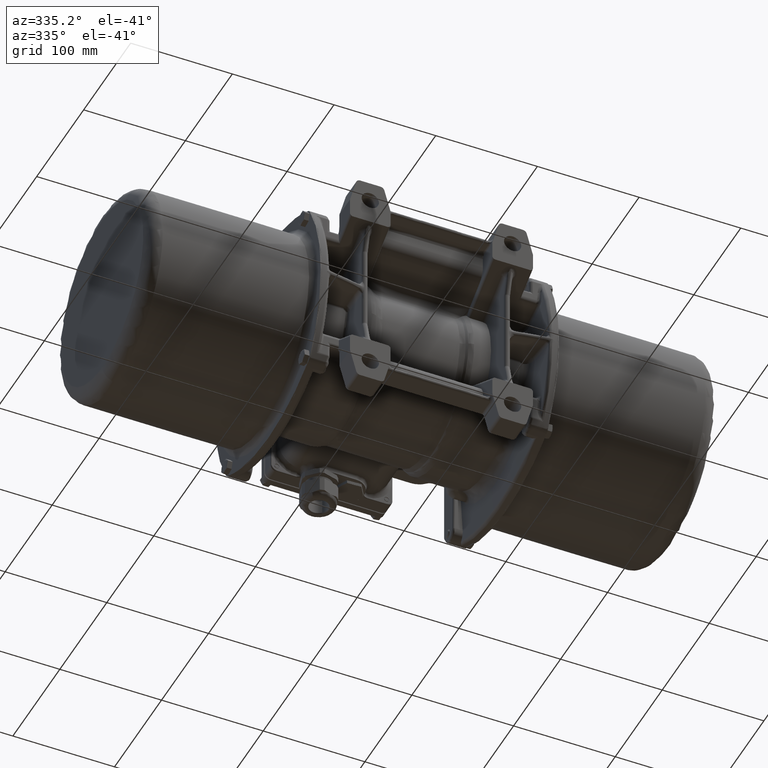
[diagram: clean part render]
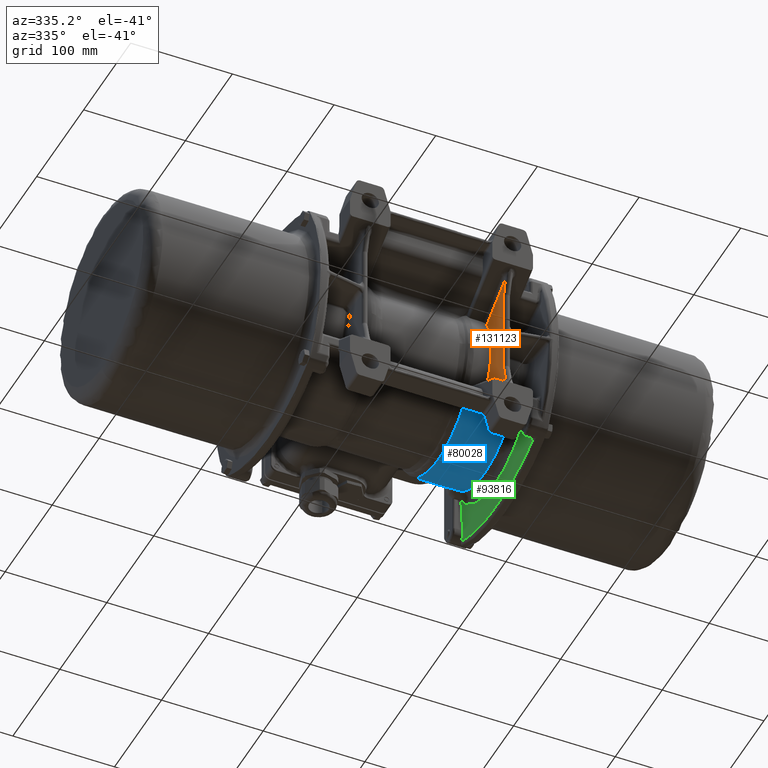
[diagram: same view with three faces highlighted in distinct colors, each labeled with its STEP entity id]
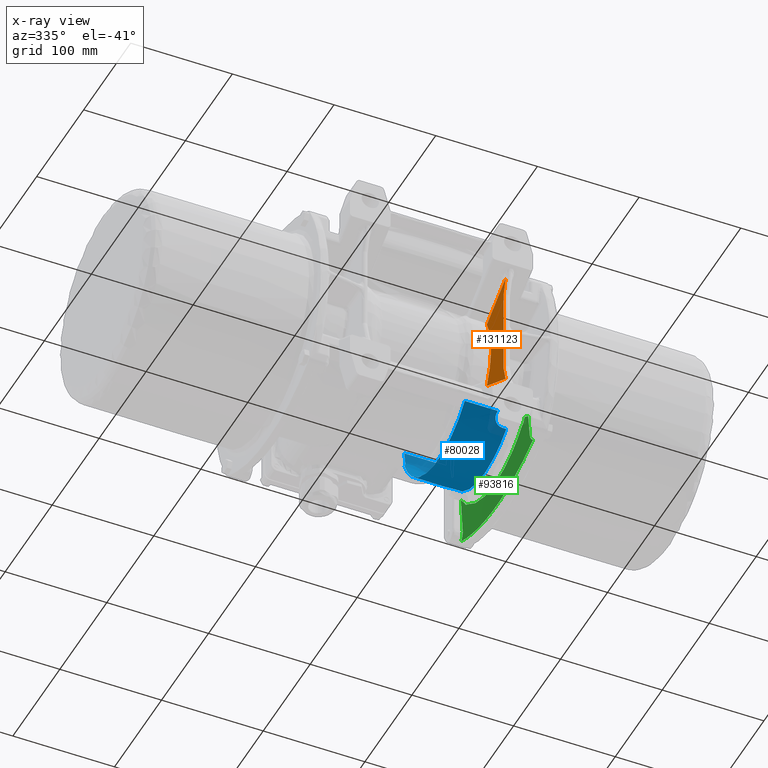
[diagram: x-ray of the same camera — body ghosted, the three highlighted faces saturated]
A machine part, auxiliary view with three faces highlighted in distinct colors.
The next image is the same camera in x-ray (body ghosted, the three faces saturated) — at least one of them is partly hidden behind the body in this view.
Their STEP definitions:

[orange] entity #131123 — the highlighted planar face has unit normal (-1, 0, 0).
#5840 = VERTEX_POINT ( 'NONE', #32168 ) ;
#5854 = CARTESIAN_POINT ( 'NONE',  ( 27.09325408935549400, 642.6741973240718800, -123.9219447907822900 ) ) ;
#6753 = B_SPLINE_CURVE_WITH_KNOTS ( 'NONE', 3,
 ( #82902, #158949, #134024, #16506 ),
 .UNSPECIFIED., .F., .F.,
 ( 4, 4 ),
 ( 0.0000000000000000000, 1.000000000000000000 ),
 .UNSPECIFIED. ) ;
#6974 = DIRECTION ( 'NONE',  ( 1.169736329567923600E-016, 0.0000000000000000000, 1.000000000000000000 ) ) ;
#9528 = VERTEX_POINT ( 'NONE', #25368 ) ;
#16479 = CARTESIAN_POINT ( 'NONE',  ( 27.09325408935549400, 673.6736381465968900, -58.32265866283111700 ) ) ;
#16506 = CARTESIAN_POINT ( 'NONE',  ( 27.09325408935551800, 646.9691613519378300, -21.29989011238579600 ) ) ;
#17593 = CARTESIAN_POINT ( 'NONE',  ( 27.09325408935549700, 674.6381879025971100, -77.11209689886533200 ) ) ;
#21512 = ORIENTED_EDGE ( 'NONE', *, *, #149327, .T. ) ;
#25368 = CARTESIAN_POINT ( 'NONE',  ( 27.09325408935551800, 642.6780710083918400, -5.285322930403276900 ) ) ;
#25967 = CARTESIAN_POINT ( 'NONE',  ( 27.09325408935553300, 662.7255111117912100, -16.85971787054752000 ) ) ;
#28396 = CARTESIAN_POINT ( 'NONE',  ( 27.09325408935548300, 679.7960502257281000, -95.23941441298541100 ) ) ;
#29828 = CARTESIAN_POINT ( 'NONE',  ( 27.09325408935549400, 682.7656740587617600, -100.7735620829986500 ) ) ;
#32168 = CARTESIAN_POINT ( 'NONE',  ( 27.09325408935550800, 647.1736063942034900, -106.3500764763738700 ) ) ;
#35068 = VECTOR ( 'NONE', #82641, 1000.000000000000100 ) ;
#36175 = ORIENTED_EDGE ( 'NONE', *, *, #155311, .T. ) ;
#39600 = DIRECTION ( 'NONE',  ( 0.0000000000000000000, -0.8660254037844554700, 0.4999999999999708600 ) ) ;
#41375 = DIRECTION ( 'NONE',  ( 0.0000000000000000000, 0.0000000000000000000, 1.000000000000000000 ) ) ;
#42568 = CARTESIAN_POINT ( 'NONE',  ( 27.09325408935550400, 674.4509727830653700, -52.04247719954754800 ) ) ;
#43122 = CARTESIAN_POINT ( 'NONE',  ( 27.09325408935551100, 681.3240264962304300, -31.21811844827462000 ) ) ;
#44088 = EDGE_CURVE ( 'NONE', #91239, #9528, #60792, .T. ) ;
#53986 = LINE ( 'NONE', #120306, #151396 ) ;
#55043 = CARTESIAN_POINT ( 'NONE',  ( 27.09325408935549000, 673.6735696737725900, -67.73999899931278900 ) ) ;
#55598 = CARTESIAN_POINT ( 'NONE',  ( 27.09325408935551100, 676.7469705789066000, -42.90728887940404200 ) ) ;
#56766 = VERTEX_POINT ( 'NONE', #149861 ) ;
#59297 = EDGE_CURVE ( 'NONE', #5840, #56766, #53986, .T. ) ;
#60792 = LINE ( 'NONE', #62535, #62764 ) ;
#62535 = CARTESIAN_POINT ( 'NONE',  ( 27.09325408935550800, 646.9691613519378300, -21.29989011238579600 ) ) ;
#62764 = VECTOR ( 'NONE', #138112, 1000.000000000000200 ) ;
#64079 = FACE_OUTER_BOUND ( 'NONE', #119915, .T. ) ;
#65651 = CARTESIAN_POINT ( 'NONE',  ( 27.09325408935547900, 646.9691613519379400, -107.9029907469890500 ) ) ;
#68672 = CARTESIAN_POINT ( 'NONE',  ( 27.09325408935549700, 677.7004290599262500, -39.90848426765565200 ) ) ;
#70459 = VECTOR ( 'NONE', #39600, 1000.000000000000100 ) ;
#72357 = ORIENTED_EDGE ( 'NONE', *, *, #159459, .F. ) ;
#75568 = VERTEX_POINT ( 'NONE', #80972 ) ;
#80972 = CARTESIAN_POINT ( 'NONE',  ( 27.09325408935442400, 682.7656011601554800, -28.42986507498286000 ) ) ;
#82315 = CARTESIAN_POINT ( 'NONE',  ( 27.09325408935442400, 682.7656011601554800, -28.42986507498286000 ) ) ;
#82641 = DIRECTION ( 'NONE',  ( 0.0000000000000000000, -0.8660254037844410400, -0.4999999999999958900 ) ) ;
#82902 = CARTESIAN_POINT ( 'NONE',  ( 27.09325408935550800, 647.1736063942034900, -22.85280438300099700 ) ) ;
#86995 = ORIENTED_EDGE ( 'NONE', *, *, #140690, .T. ) ;
#88812 = CARTESIAN_POINT ( 'NONE',  ( 27.09325408935547900, 646.9691613519379400, -107.9029907469890500 ) ) ;
#91239 = VERTEX_POINT ( 'NONE', #160070 ) ;
#95583 = DIRECTION ( 'NONE',  ( -1.000000000000000000, 0.0000000000000000000, 1.169736329567923600E-016 ) ) ;
#96141 = PLANE ( 'NONE',  #97065 ) ;
#97065 = AXIS2_PLACEMENT_3D ( 'NONE', #5854, #95583, #6974 ) ;
#101190 = ORIENTED_EDGE ( 'NONE', *, *, #59297, .T. ) ;
#110939 = VERTEX_POINT ( 'NONE', #131032 ) ;
#115232 = CARTESIAN_POINT ( 'NONE',  ( 27.09325408935549400, 642.6778831726385300, -123.9182589423191000 ) ) ;
#119915 = EDGE_LOOP ( 'NONE', ( #122069, #36175, #86995, #101190, #21512, #139443, #145936, #72357 ) ) ;
#120306 = CARTESIAN_POINT ( 'NONE',  ( 27.09325408935549400, 647.1736063942034900, -64.60179093636355700 ) ) ;
#120956 = CARTESIAN_POINT ( 'NONE',  ( 27.09325408935549700, 673.8671836801900100, -70.88051634098383100 ) ) ;
#122069 = ORIENTED_EDGE ( 'NONE', *, *, #144119, .T. ) ;
#123272 = CARTESIAN_POINT ( 'NONE',  ( 27.09325408935549400, 642.6778831723936500, -123.9182589424605100 ) ) ;
#126258 = EDGE_CURVE ( 'NONE', #75568, #9528, #149601, .T. ) ;
#126316 = CARTESIAN_POINT ( 'NONE',  ( 27.09325408935550800, 647.1736063942034900, -106.3500764763738700 ) ) ;
#131032 = CARTESIAN_POINT ( 'NONE',  ( 27.09325408935435300, 682.7658439254394100, -100.7734681890935200 ) ) ;
#131123 = ADVANCED_FACE ( 'NONE', ( #64079 ), #96141, .T. ) ;
#132892 = CARTESIAN_POINT ( 'NONE',  ( 27.09325408935551500, 675.2160195990921900, -80.20417905355607500 ) ) ;
#133996 = CARTESIAN_POINT ( 'NONE',  ( 27.09325408935549700, 679.4004837180385700, -35.51738308922814000 ) ) ;
#134024 = CARTESIAN_POINT ( 'NONE',  ( 27.09325408935550400, 647.1049591454718700, -21.80669437740840200 ) ) ;
#138112 = DIRECTION ( 'NONE',  ( 0.0000000000000000000, -0.2588190451025163000, 0.9659258262890694200 ) ) ;
#139443 = ORIENTED_EDGE ( 'NONE', *, *, #44088, .T. ) ;
#140690 = EDGE_CURVE ( 'NONE', #166854, #5840, #155002, .T. ) ;
#140980 = CARTESIAN_POINT ( 'NONE',  ( 27.09325408935549700, 647.1047857920103800, -107.3968334458895800 ) ) ;
#142525 = B_SPLINE_CURVE_WITH_KNOTS ( 'NONE', 3,
 ( #160601, #28396, #158924, #132892, #17593, #120956, #55043, #16479, #42568, #55598, #68672, #133996, #159483, #43122, #160043, #82315 ),
 .UNSPECIFIED., .F., .F.,
 ( 4, 2, 2, 2, 2, 2, 2, 4 ),
 ( 2.408404517657134100E-009, 0.01883450874222154800, 0.02825176190913006300, 0.03766901507603857800, 0.05650352140985560900, 0.06592077457676412400, 0.07062940116021838900, 0.07533802774367263900 ),
 .UNSPECIFIED. ) ;
#144119 = EDGE_CURVE ( 'NONE', #110939, #157484, #152824, .T. ) ;
#145936 = ORIENTED_EDGE ( 'NONE', *, *, #126258, .F. ) ;
#149327 = EDGE_CURVE ( 'NONE', #56766, #91239, #6753, .T. ) ;
#149601 = LINE ( 'NONE', #25967, #70459 ) ;
#149856 = DIRECTION ( 'NONE',  ( 0.0000000000000000000, 0.2588190451025162400, 0.9659258262890694200 ) ) ;
#149861 = CARTESIAN_POINT ( 'NONE',  ( 27.09325408935550800, 647.1736063942034900, -22.85280438300099700 ) ) ;
#151396 = VECTOR ( 'NONE', #41375, 1000.000000000000000 ) ;
#152824 = LINE ( 'NONE', #29828, #35068 ) ;
#152907 = CARTESIAN_POINT ( 'NONE',  ( 27.09325408935549700, 647.1736063942034900, -106.8747588599281800 ) ) ;
#154456 = VECTOR ( 'NONE', #149856, 1000.000000000000200 ) ;
#155002 = B_SPLINE_CURVE_WITH_KNOTS ( 'NONE', 3,
 ( #88812, #140980, #152907, #126316 ),
 .UNSPECIFIED., .F., .F.,
 ( 4, 4 ),
 ( 0.0000000000000000000, 1.000000000000000000 ),
 .UNSPECIFIED. ) ;
#155311 = EDGE_CURVE ( 'NONE', #157484, #166854, #166649, .T. ) ;
#157484 = VERTEX_POINT ( 'NONE', #115232 ) ;
#158924 = CARTESIAN_POINT ( 'NONE',  ( 27.09325408935550100, 677.5122215760777600, -89.34063050282442500 ) ) ;
#158949 = CARTESIAN_POINT ( 'NONE',  ( 27.09325408935550400, 647.1736063942034900, -22.32879178579109000 ) ) ;
#159459 = EDGE_CURVE ( 'NONE', #110939, #75568, #142525, .T. ) ;
#159483 = CARTESIAN_POINT ( 'NONE',  ( 27.09325408935551500, 680.0126221709464300, -34.07015877677844200 ) ) ;
#160043 = CARTESIAN_POINT ( 'NONE',  ( 27.09325408935551500, 682.0231627963287300, -29.81338217564905000 ) ) ;
#160070 = CARTESIAN_POINT ( 'NONE',  ( 27.09325408935551800, 646.9691613519378300, -21.29989011238579600 ) ) ;
#160601 = CARTESIAN_POINT ( 'NONE',  ( 27.09325408935435300, 682.7658439254394100, -100.7734681890935200 ) ) ;
#166649 = LINE ( 'NONE', #123272, #154456 ) ;
#166854 = VERTEX_POINT ( 'NONE', #65651 ) ;

[blue] entity #80028 — the highlighted face is a freeform B-spline surface patch.
#1063 = CARTESIAN_POINT ( 'NONE',  ( 25.50730561982282700, 816.2752752808388500, -103.6319743794457100 ) ) ;
#1342 = CARTESIAN_POINT ( 'NONE',  ( 51.36596842526707700, 797.0091324635677700, -125.0883718010579200 ) ) ;
#1480 = ORIENTED_EDGE ( 'NONE', *, *, #56837, .T. ) ;
#2193 = CARTESIAN_POINT ( 'NONE',  ( 10.37079431543347300, 824.6366835185778000, -83.25857294999843800 ) ) ;
#2300 = VECTOR ( 'NONE', #19302, 1000.000000000000100 ) ;
#2756 = CARTESIAN_POINT ( 'NONE',  ( 55.78032878102367000, 816.2752742807988400, -103.6319743794457100 ) ) ;
#3113 = CARTESIAN_POINT ( 'NONE',  ( 52.09321952114810700, 703.3379798587898200, -125.0884375994583500 ) ) ;
#3313 = CARTESIAN_POINT ( 'NONE',  ( 25.50730589603388100, 824.6366830185577300, -83.25857294999843800 ) ) ;
#4795 = CARTESIAN_POINT ( 'NONE',  ( 10.37078995448950600, 693.5241641546690500, -116.0124498044477500 ) ) ;
#5352 = VERTEX_POINT ( 'NONE', #6392 ) ;
#6392 = CARTESIAN_POINT ( 'NONE',  ( 52.09321947105002700, 810.6605665761052300, -111.4370337899759700 ) ) ;
#6421 = CARTESIAN_POINT ( 'NONE',  ( 12.09322916486634000, 824.2749586213624300, -83.60765203880085000 ) ) ;
#6497 = CARTESIAN_POINT ( 'NONE',  ( 50.69148929487074900, 810.6012983751995800, -111.5134920509457600 ) ) ;
#7610 = CARTESIAN_POINT ( 'NONE',  ( 10.37079403922244600, 816.2752757808589200, -103.6319743794457100 ) ) ;
#8468 = CARTESIAN_POINT ( 'NONE',  ( 52.09321952114810700, 703.3379798587898200, -125.0884375994583500 ) ) ;
#9301 = CARTESIAN_POINT ( 'NONE',  ( 43.83826275591908900, 807.8288843404000100, -114.8822676851430500 ) ) ;
#9595 = CARTESIAN_POINT ( 'NONE',  ( 49.85842911308231600, 703.1477629648185300, -124.9407638163697200 ) ) ;
#10161 = CARTESIAN_POINT ( 'NONE',  ( 47.74449380159217100, 702.5599683857600400, -124.4785667564813400 ) ) ;
#10614 = VERTEX_POINT ( 'NONE', #140728 ) ;
#11360 = CARTESIAN_POINT ( 'NONE',  ( 55.78032528063332800, 710.3121203531557100, -130.2052206285312900 ) ) ;
#11512 = CARTESIAN_POINT ( 'NONE',  ( 10.37079421046109600, 821.4589804026261400, -92.36187879810223900 ) ) ;
#11587 = CARTESIAN_POINT ( 'NONE',  ( 12.09322916486634000, 824.2749586213624300, -83.60765203880085000 ) ) ;
#11738 = CARTESIAN_POINT ( 'NONE',  ( 10.37078995448950600, 693.5241641546690500, -116.0124498044477500 ) ) ;
#11819 = CARTESIAN_POINT ( 'NONE',  ( 44.49210753505682400, 700.5688970007413400, -122.8393944999066000 ) ) ;
#11918 = CARTESIAN_POINT ( 'NONE',  ( 40.64381580894328700, 774.1526561666574900, -137.5247796291281800 ) ) ;
#12475 = CARTESIAN_POINT ( 'NONE',  ( 40.64381314537917000, 693.5217492908608400, -116.0097898600698000 ) ) ;
#12751 = CARTESIAN_POINT ( 'NONE',  ( 45.46923721182947300, 798.9926477271549200, -123.4996455530499400 ) ) ;
#13040 = CARTESIAN_POINT ( 'NONE',  ( 55.78032472597960400, 693.5217487908407700, -116.0097898600698000 ) ) ;
#13615 = CARTESIAN_POINT ( 'NONE',  ( 55.78032480739379700, 695.9863040144487100, -118.7257217390660300 ) ) ;
#14190 = CARTESIAN_POINT ( 'NONE',  ( 40.64381753090563600, 826.2795746012582200, -72.35559747307712500 ) ) ;
#15856 = CARTESIAN_POINT ( 'NONE',  ( 40.64381736279580800, 821.1905855915970300, -93.74552554126668700 ) ) ;
#16412 = CARTESIAN_POINT ( 'NONE',  ( 10.37079358327126900, 802.4728083305485600, -120.7939785907627300 ) ) ;
#16596 = CARTESIAN_POINT ( 'NONE',  ( 55.78032560499438800, 720.1356154981328900, -135.2451704430727100 ) ) ;
#17590 = ORIENTED_EDGE ( 'NONE', *, *, #32746, .T. ) ;
#18368 = CARTESIAN_POINT ( 'NONE',  ( 12.09322919623169500, 825.2244449893528300, -79.86351764328382800 ) ) ;
#18435 = CARTESIAN_POINT ( 'NONE',  ( 10.37079053883207900, 710.3121218532154400, -130.2052206285312900 ) ) ;
#18771 = B_SPLINE_CURVE_WITH_KNOTS ( 'NONE', 3,
 ( #154981, #25576, #77268, #77829, #54478, #119831, #28923 ),
 .UNSPECIFIED., .F., .F.,
 ( 4, 1, 1, 1, 4 ),
 ( 0.0000000000000000000, 0.1399965457286055900, 0.4268509631190678900, 0.7137053804218289600, 1.000000000000000000 ),
 .UNSPECIFIED. ) ;
#19001 = CARTESIAN_POINT ( 'NONE',  ( 10.37079120836246900, 730.5800198758523700, -138.8233994012418900 ) ) ;
#19302 = DIRECTION ( 'NONE',  ( 0.9999999999999994400, -3.303403280569846100E-008, 9.529898651442633300E-015 ) ) ;
#22964 = CARTESIAN_POINT ( 'NONE',  ( 42.43411527689563200, 694.7579306530647000, -117.3485872809529800 ) ) ;
#23655 = CARTESIAN_POINT ( 'NONE',  ( 32.15240760585805200, 693.5240876486243500, -116.0123648524693700 ) ) ;
#23738 = CARTESIAN_POINT ( 'NONE',  ( 48.25306523464909200, 702.7404717966115900, -124.6213365344100800 ) ) ;
#24534 = CARTESIAN_POINT ( 'NONE',  ( 10.65339163578968100, 821.7289337193642500, -91.66868526507533900 ) ) ;
#24841 = CARTESIAN_POINT ( 'NONE',  ( 43.40810468932049600, 699.3608696034428900, -121.7898867258328400 ) ) ;
#24944 = CARTESIAN_POINT ( 'NONE',  ( 55.78032738954372100, 774.1526556666375400, -137.5247796291281800 ) ) ;
#25512 = CARTESIAN_POINT ( 'NONE',  ( 40.64381436956328000, 730.5800188758123600, -138.8233994012418900 ) ) ;
#25576 = CARTESIAN_POINT ( 'NONE',  ( 55.78032863538803800, 811.8706110708710600, -109.8738379189605600 ) ) ;
#26082 = CARTESIAN_POINT ( 'NONE',  ( 10.37079193116180400, 752.4604650264624300, -141.3320033507774000 ) ) ;
#26115 = VERTEX_POINT ( 'NONE', #109195 ) ;
#26360 = CARTESIAN_POINT ( 'NONE',  ( 42.34785578832885000, 805.1307179581674500, -117.8220760214625200 ) ) ;
#27221 = CARTESIAN_POINT ( 'NONE',  ( 25.50730595030523100, 826.2795751012782800, -72.35559747307712500 ) ) ;
#27879 = ORIENTED_EDGE ( 'NONE', *, *, #126045, .T. ) ;
#28324 = CARTESIAN_POINT ( 'NONE',  ( 10.37079383168444700, 809.9927254641527300, -112.7104563817409300 ) ) ;
#28599 = ORIENTED_EDGE ( 'NONE', *, *, #109285, .T. ) ;
#28861 = CARTESIAN_POINT ( 'NONE',  ( 40.64381674447213300, 802.4728073305085400, -120.7939785907627300 ) ) ;
#28923 = CARTESIAN_POINT ( 'NONE',  ( 55.78032911039898800, 826.2504763041386000, -72.63605927774493400 ) ) ;
#29369 = CARTESIAN_POINT ( 'NONE',  ( 54.55129221508752800, 797.0091323930551000, -125.0883717741799200 ) ) ;
#32043 = CARTESIAN_POINT ( 'NONE',  ( 10.37079156677535100, 741.4298259808796300, -140.8664834629824700 ) ) ;
#32180 = B_SPLINE_CURVE_WITH_KNOTS ( 'NONE', 3,
 ( #6421, #135871, #18368, #148335, #84209 ),
 .UNSPECIFIED., .F., .F.,
 ( 4, 1, 4 ),
 ( 0.0000000000000000000, 0.03834921825286636400, 1.000000000000000000 ),
 .UNSPECIFIED. ) ;
#32746 = EDGE_CURVE ( 'NONE', #143357, #60024, #156185, .T. ) ;
#32793 = LINE ( 'NONE', #84568, #2300 ) ;
#34285 = CARTESIAN_POINT ( 'NONE',  ( 10.37079329912196500, 793.8710943730562800, -127.7151218137680900 ) ) ;
#34846 = CARTESIAN_POINT ( 'NONE',  ( 10.37079420493751400, 821.2917709490991500, -92.79126652399615700 ) ) ;
#34911 = CARTESIAN_POINT ( 'NONE',  ( 42.28301996497712200, 696.0986997112376000, -118.7157575517905700 ) ) ;
#35404 = CARTESIAN_POINT ( 'NONE',  ( 49.31670395765679900, 810.4261012821045800, -111.7386572399814100 ) ) ;
#35693 = CARTESIAN_POINT ( 'NONE',  ( 46.09452081246779900, 701.7513923711477400, -123.8260020260827500 ) ) ;
#37693 = ORIENTED_EDGE ( 'NONE', *, *, #147518, .T. ) ;
#37713 = CARTESIAN_POINT ( 'NONE',  ( 48.19784968846887800, 797.6328136283749500, -124.6004538024662800 ) ) ;
#38276 = CARTESIAN_POINT ( 'NONE',  ( 42.28327875542016300, 804.6369237124596300, -118.3275285671272000 ) ) ;
#39135 = CARTESIAN_POINT ( 'NONE',  ( 25.50730182221243300, 701.3147331606093100, -123.8100064496877300 ) ) ;
#39988 = CARTESIAN_POINT ( 'NONE',  ( 47.54136061739482200, 797.8752406014695000, -124.4078932032206500 ) ) ;
#41388 = CARTESIAN_POINT ( 'NONE',  ( 40.64381747663429700, 824.6366825185376700, -83.25857294999843800 ) ) ;
#41942 = CARTESIAN_POINT ( 'NONE',  ( 55.78032911150605600, 826.2795741012381500, -72.35559747307712500 ) ) ;
#42128 = CARTESIAN_POINT ( 'NONE',  ( 55.78032630842797300, 741.4298244808194300, -140.8664834629824700 ) ) ;
#42528 = CARTESIAN_POINT ( 'NONE',  ( 42.49126015674986700, 805.6111417928948400, -117.3168967772987200 ) ) ;
#45085 = CARTESIAN_POINT ( 'NONE',  ( 10.37079193116183100, 752.4604650264624300, -141.3320033507774000 ) ) ;
#45245 = CARTESIAN_POINT ( 'NONE',  ( 42.49125754076721500, 697.4581628573835100, -120.0389569610318300 ) ) ;
#46037 = B_SPLINE_CURVE_WITH_KNOTS ( 'NONE', 3,
 ( #8468, #87383, #167291, #63443, #89623, #9595, #114573, #23738, #10161, #152048, #62891, #127699, #115136, #35693, #127147, #75419, #49825, #11819, #153726, #102614, #48724, #24841, #74306, #115695, #75978, #88526 ),
 .UNSPECIFIED., .F., .F.,
 ( 4, 2, 2, 2, 2, 2, 2, 2, 2, 2, 2, 2, 4 ),
 ( 0.0000000000000000000, 0.06250000000000750800, 0.1250000000000150200, 0.2500000000000339700, 0.3750000000000529600, 0.4375000000000624500, 0.4687500000000683300, 0.5000000000000742700, 0.6250000000000568400, 0.6875000000000474100, 0.7500000000000378600, 0.8750000000000189800, 1.000000000000000000 ),
 .UNSPECIFIED. ) ;
#48724 = CARTESIAN_POINT ( 'NONE',  ( 43.83826080909187100, 699.8927833485121300, -122.2567090784826100 ) ) ;
#49739 = CARTESIAN_POINT ( 'NONE',  ( 21.26159875040556800, 693.5241259025575600, -116.0124073277154400 ) ) ;
#49825 = CARTESIAN_POINT ( 'NONE',  ( 45.04001724316815100, 701.0470487853047000, -123.2444586083722700 ) ) ;
#50620 = CARTESIAN_POINT ( 'NONE',  ( 11.36910786842773100, 822.5571779904009900, -89.36264503226715300 ) ) ;
#50644 = CARTESIAN_POINT ( 'NONE',  ( 42.49126015674986700, 805.6111417928948400, -117.3168967772987200 ) ) ;
#50900 = B_SPLINE_CURVE_WITH_KNOTS ( 'NONE', 3,
 ( #11512, #24534, #115380, #128497, #50620, #141499, #130173, #145424, #156205, #117092, #52883, #67633 ),
 .UNSPECIFIED., .F., .F.,
 ( 4, 2, 1, 1, 2, 2, 4 ),
 ( 0.0000000000000000000, 0.2500000000000300300, 0.3750000000000470700, 0.4375000000000535100, 0.4687500000000567300, 0.5000000000000599500, 1.000000000000000000 ),
 .UNSPECIFIED. ) ;
#51023 = CARTESIAN_POINT ( 'NONE',  ( 10.37079006559253500, 695.9863055145087900, -118.7257217390660300 ) ) ;
#51282 = CARTESIAN_POINT ( 'NONE',  ( 10.37078995448950600, 693.5241641546690500, -116.0124498044477500 ) ) ;
#51297 = CARTESIAN_POINT ( 'NONE',  ( 42.40429223534598400, 803.1216611774674400, -119.8212674981582100 ) ) ;
#51594 = CARTESIAN_POINT ( 'NONE',  ( 55.78032498341327300, 701.3147321605691800, -123.8100064496877300 ) ) ;
#51776 = CARTESIAN_POINT ( 'NONE',  ( 55.78032703563861400, 763.4438069410885000, -140.2103723729932200 ) ) ;
#52434 = CARTESIAN_POINT ( 'NONE',  ( 50.64379236385644100, 797.0728602102714100, -125.0391859509166500 ) ) ;
#52726 = CARTESIAN_POINT ( 'NONE',  ( 25.50730244394213000, 720.1356164981729100, -135.2451704430727100 ) ) ;
#52813 = CARTESIAN_POINT ( 'NONE',  ( 54.55129220329876500, 810.6605606191941400, -111.4370287582362700 ) ) ;
#52883 = CARTESIAN_POINT ( 'NONE',  ( 12.09321041450073200, 823.8882172902820000, -85.11564264357656400 ) ) ;
#53288 = CARTESIAN_POINT ( 'NONE',  ( 40.64381720042325700, 816.2752747808189000, -103.6319743794457100 ) ) ;
#53847 = CARTESIAN_POINT ( 'NONE',  ( 55.78032909922598000, 825.9078339372820200, -76.00417632957216100 ) ) ;
#54478 = CARTESIAN_POINT ( 'NONE',  ( 55.78032904720326700, 824.3370031906714500, -84.63653408647267900 ) ) ;
#54970 = CARTESIAN_POINT ( 'NONE',  ( 55.78032832507255300, 802.4728068304884800, -120.7939785907627300 ) ) ;
#55525 = CARTESIAN_POINT ( 'NONE',  ( 40.64381751862556100, 825.9078344373022000, -76.00417632957216100 ) ) ;
#56837 = EDGE_CURVE ( 'NONE', #143306, #120116, #146017, .T. ) ;
#58667 = CARTESIAN_POINT ( 'NONE',  ( 10.37079383168447300, 809.9927254641527300, -112.7104563817408800 ) ) ;
#59006 = FACE_OUTER_BOUND ( 'NONE', #64078, .T. ) ;
#59890 = VERTEX_POINT ( 'NONE', #121892 ) ;
#60024 = VERTEX_POINT ( 'NONE', #51282 ) ;
#60406 = CARTESIAN_POINT ( 'NONE',  ( 42.49125754076721500, 697.4581628573835100, -120.0389569610318300 ) ) ;
#60535 = EDGE_CURVE ( 'NONE', #114449, #143357, #68921, .T. ) ;
#60909 = CARTESIAN_POINT ( 'NONE',  ( 51.53233085876483000, 810.6531790932141300, -111.4465669522915800 ) ) ;
#61146 = CARTESIAN_POINT ( 'NONE',  ( 55.78032817435099800, 797.0090196098512900, -125.0882236978812200 ) ) ;
#61287 = EDGE_CURVE ( 'NONE', #120116, #114449, #46037, .T. ) ;
#61470 = CARTESIAN_POINT ( 'NONE',  ( 43.99253508096386900, 807.9803798176147900, -114.7079717487517900 ) ) ;
#61535 = CARTESIAN_POINT ( 'NONE',  ( 42.29406137233338800, 695.7604486434050800, -118.3756819127903100 ) ) ;
#62043 = CARTESIAN_POINT ( 'NONE',  ( 48.25326417713214500, 810.1935924202462000, -112.0343650267505500 ) ) ;
#62891 = CARTESIAN_POINT ( 'NONE',  ( 46.77994613723164700, 702.1272202746989700, -124.1314610373974400 ) ) ;
#63147 = CARTESIAN_POINT ( 'NONE',  ( 46.09462039801796600, 809.3981589921926300, -113.0235912383560800 ) ) ;
#63443 = CARTESIAN_POINT ( 'NONE',  ( 50.97258667199214000, 703.2902772556914200, -125.0514908238490100 ) ) ;
#63544 = CARTESIAN_POINT ( 'NONE',  ( 25.50730314737574400, 741.4298254808595600, -140.8664834629824700 ) ) ;
#63717 = CARTESIAN_POINT ( 'NONE',  ( 45.43984928221635800, 809.0631779979668200, -113.4316216406884500 ) ) ;
#64078 = EDGE_LOOP ( 'NONE', ( #17590, #83294, #123340, #164163, #37693, #147626, #27879, #28599, #131110, #135748, #141348, #1480, #156375, #64144 ) ) ;
#64144 = ORIENTED_EDGE ( 'NONE', *, *, #60535, .T. ) ;
#64384 = CARTESIAN_POINT ( 'NONE',  ( 43.15526149113367900, 801.3826685048289800, -121.4343489513107800 ) ) ;
#65196 = CARTESIAN_POINT ( 'NONE',  ( 54.55128987066269300, 703.3379734267392700, -125.0884473733699600 ) ) ;
#65757 = EDGE_CURVE ( 'NONE', #152488, #143306, #114854, .T. ) ;
#66358 = CARTESIAN_POINT ( 'NONE',  ( 40.64381699288529900, 809.9927244641126000, -112.7104563817409300 ) ) ;
#66909 = CARTESIAN_POINT ( 'NONE',  ( 25.50730578219537000, 821.1905860916170900, -93.74552554126668700 ) ) ;
#67470 = CARTESIAN_POINT ( 'NONE',  ( 10.37079435742471700, 825.9078354373422100, -76.00417632957216100 ) ) ;
#67633 = CARTESIAN_POINT ( 'NONE',  ( 12.09322916486634000, 824.2749586213624300, -83.60765203880085000 ) ) ;
#68038 = CARTESIAN_POINT ( 'NONE',  ( 25.50730456571434600, 784.3655024669190000, -133.3307803357228400 ) ) ;
#68227 = CARTESIAN_POINT ( 'NONE',  ( 55.78032530382111500, 711.0185552279583600, -130.5676574459472500 ) ) ;
#68417 = CARTESIAN_POINT ( 'NONE',  ( 10.37079264774244400, 774.1526571666976200, -137.5247796291281800 ) ) ;
#68598 = CARTESIAN_POINT ( 'NONE',  ( 25.50730516387168800, 802.4728078305285000, -120.7939785907627300 ) ) ;
#68921 = B_SPLINE_CURVE_WITH_KNOTS ( 'NONE', 3,
 ( #60406, #74637, #139929, #34911, #61535, #22964, #87724, #152389 ),
 .UNSPECIFIED., .F., .F.,
 ( 4, 2, 2, 4 ),
 ( 0.0000000000000000000, 0.2499999999999899500, 0.4999999999999799000, 1.000000000000000000 ),
 .UNSPECIFIED. ) ;
#70088 = CARTESIAN_POINT ( 'NONE',  ( 10.37079006565002700, 695.9880450970985100, -118.7273815767593300 ) ) ;
#71218 = CARTESIAN_POINT ( 'NONE',  ( 10.37079415426585700, 819.7578483463980800, -96.62727481518798800 ) ) ;
#74306 = CARTESIAN_POINT ( 'NONE',  ( 43.16345746887241600, 698.9930886192097400, -121.4613195998685500 ) ) ;
#74637 = CARTESIAN_POINT ( 'NONE',  ( 42.39424124957411500, 697.1164458451876300, -119.7138879547877800 ) ) ;
#74756 = VERTEX_POINT ( 'NONE', #80629 ) ;
#75419 = CARTESIAN_POINT ( 'NONE',  ( 45.44002663431710700, 701.3434677826753600, -123.4910996416992100 ) ) ;
#75978 = CARTESIAN_POINT ( 'NONE',  ( 42.60185835964414700, 697.8478718517280900, -120.4093920493605900 ) ) ;
#76248 = CARTESIAN_POINT ( 'NONE',  ( 45.98233116120067600, 809.3428140551568500, -113.0912098114924600 ) ) ;
#76636 = CARTESIAN_POINT ( 'NONE',  ( 10.37079053883205400, 710.3121218532157900, -130.2052206285312900 ) ) ;
#76813 = CARTESIAN_POINT ( 'NONE',  ( 42.75842465969604000, 806.3400260276034700, -116.5420809645937200 ) ) ;
#77268 = CARTESIAN_POINT ( 'NONE',  ( 55.78032875123481200, 815.3775028065671200, -104.9639091668447300 ) ) ;
#77479 = CARTESIAN_POINT ( 'NONE',  ( 49.56814207583854400, 797.2633419557737400, -124.8907262465294500 ) ) ;
#77768 = CARTESIAN_POINT ( 'NONE',  ( 40.64381402454256400, 720.1356159981528400, -135.2451704430727100 ) ) ;
#77829 = CARTESIAN_POINT ( 'NONE',  ( 55.78032891183631400, 820.2391994316501500, -96.10405132906696200 ) ) ;
#78033 = CARTESIAN_POINT ( 'NONE',  ( 52.09322038797070300, 797.0091555384927900, -125.0884012943553400 ) ) ;
#78319 = CARTESIAN_POINT ( 'NONE',  ( 40.64381340281283900, 701.3147326605892400, -123.8100064496877300 ) ) ;
#78886 = CARTESIAN_POINT ( 'NONE',  ( 55.78032667296313500, 752.4604635264023500, -141.3320033507774000 ) ) ;
#79161 = CARTESIAN_POINT ( 'NONE',  ( 44.95493607844078100, 799.3772182111289300, -123.1787657611516900 ) ) ;
#79446 = CARTESIAN_POINT ( 'NONE',  ( 55.78032772691519600, 784.3655014668788700, -133.3307803357228400 ) ) ;
#80028 = ADVANCED_FACE ( 'NONE', ( #59006 ), #88160, .T. ) ;
#80629 = CARTESIAN_POINT ( 'NONE',  ( 55.78032911039898800, 826.2504763041386000, -72.63605927774493400 ) ) ;
#81124 = CARTESIAN_POINT ( 'NONE',  ( 25.50730593802513700, 825.9078349373222600, -76.00417632957216100 ) ) ;
#82714 = EDGE_CURVE ( 'NONE', #160643, #152488, #157131, .T. ) ;
#82889 = CARTESIAN_POINT ( 'NONE',  ( 53.32225581105046100, 810.6605606597942100, -111.4370287582362700 ) ) ;
#83294 = ORIENTED_EDGE ( 'NONE', *, *, #115290, .T. ) ;
#84209 = CARTESIAN_POINT ( 'NONE',  ( 12.09322923012569400, 826.2504777474490500, -72.63605927776164600 ) ) ;
#84568 = CARTESIAN_POINT ( 'NONE',  ( 33.93677917026119700, 826.2504772732676200, -72.63605930389152800 ) ) ;
#85315 = B_SPLINE_CURVE_WITH_KNOTS ( 'NONE', 3,
 ( #4795, #70088, #121801, #18435, #135380, #19001, #32043, #45085, #135941, #68417, #107587, #34285, #138172, #58667, #7610, #71218, #34846, #110385 ),
 .UNSPECIFIED., .F., .F.,
 ( 4, 1, 1, 1, 1, 1, 1, 1, 1, 1, 1, 1, 1, 1, 1, 4 ),
 ( 0.0000000000000000000, 0.07077224897264412800, 0.1415676104113412200, 0.2123629718500383000, 0.2831583332887354100, 0.3539536947274324900, 0.4247490561661296200, 0.4955444176048267600, 0.5663397790435238400, 0.6371351404822209700, 0.7079305019209180000, 0.7787258633596151300, 0.8495212247983121600, 0.9203165862370091800, 0.9911119476757061000, 1.000000000000000000 ),
 .UNSPECIFIED. ) ;
#85476 = EDGE_CURVE ( 'NONE', #88814, #59890, #32180, .T. ) ;
#87383 = CARTESIAN_POINT ( 'NONE',  ( 51.81264130989721700, 703.3379725483415500, -125.0884466231761100 ) ) ;
#87659 = CARTESIAN_POINT ( 'NONE',  ( 46.31976804280522900, 809.5041081743256700, -112.8937192264647100 ) ) ;
#87724 = CARTESIAN_POINT ( 'NONE',  ( 42.66827209495712500, 694.1245260718152400, -116.6739882129026700 ) ) ;
#88160 = B_SPLINE_SURFACE_WITH_KNOTS ( 'NONE', 3, 3, ( 
 ( #167950, #89176, #12475, #13040 ),
 ( #51023, #129462, #115227, #13615 ),
 ( #156049, #39135, #78319, #51594 ),
 ( #76636, #167389, #155488, #11360 ),
 ( #90287, #52726, #77768, #103281 ),
 ( #142466, #168517, #25512, #117500 ),
 ( #128345, #63544, #103842, #130590 ),
 ( #26082, #128902, #143596, #78886 ),
 ( #102161, #116929, #130018, #89724 ),
 ( #154371, #143027, #11918, #24944 ),
 ( #144158, #68038, #131138, #79446 ),
 ( #105534, #131702, #146357, #159401 ),
 ( #16412, #68598, #28861, #54970 ),
 ( #28324, #106089, #66358, #157729 ),
 ( #133370, #1063, #53288, #2756 ),
 ( #157175, #66909, #15856, #158845 ),
 ( #2193, #3313, #41388, #106648 ),
 ( #67470, #81124, #55525, #53847 ),
 ( #91971, #27221, #14190, #41942 ) ),
 .UNSPECIFIED., .F., .F., .F.,
 ( 4, 1, 1, 1, 1, 1, 1, 1, 1, 1, 1, 1, 1, 1, 1, 1, 4 ),
 ( 4, 4 ),
 ( 0.0000000000000000000, 11.00240272822468200, 22.00480545644936100, 33.00720818467404200, 44.00961091289872200, 55.01201364112340300, 66.01441636934808300, 77.01681909757276400, 88.01922182579744500, 99.02162455402212500, 110.0240272822468100, 121.0264300104714900, 132.0288327386961700, 143.0312354669208300, 154.0336381951455000, 165.0360409233701700, 176.0384436515948300 ),
 ( 0.0000000000000000000, 45.40953474180128800 ),
 .UNSPECIFIED. ) ;
#88526 = CARTESIAN_POINT ( 'NONE',  ( 42.49125754076721500, 697.4581628573835100, -120.0389569610318300 ) ) ;
#88798 = CARTESIAN_POINT ( 'NONE',  ( 46.78024140745383600, 809.7036914367923800, -112.6476648470408200 ) ) ;
#88814 = VERTEX_POINT ( 'NONE', #11587 ) ;
#89176 = CARTESIAN_POINT ( 'NONE',  ( 25.50730156477876100, 693.5217497908809000, -116.0097898600698000 ) ) ;
#89623 = CARTESIAN_POINT ( 'NONE',  ( 50.69145877710478500, 703.2614558403984100, -125.0291412195805400 ) ) ;
#89724 = CARTESIAN_POINT ( 'NONE',  ( 55.78032703578722400, 763.4438069410885000, -140.2103723729932200 ) ) ;
#90287 = CARTESIAN_POINT ( 'NONE',  ( 10.37079086334169500, 720.1356169981929700, -135.2451704430727100 ) ) ;
#90554 = CARTESIAN_POINT ( 'NONE',  ( 42.66266640601035900, 802.3644095942692000, -120.5343183225714100 ) ) ;
#90807 = CARTESIAN_POINT ( 'NONE',  ( 53.32225469107629600, 703.3379734673393400, -125.0884473733699600 ) ) ;
#90905 = B_SPLINE_CURVE_WITH_KNOTS ( 'NONE', 3,
 ( #112610, #138748, #60909, #164790, #6497, #153443, #35404, #62043, #101776, #165899, #88798, #115402, #87659, #63147, #76248, #63717, #139303, #153983, #127412, #61470, #9301, #154536, #166444, #76813, #140969, #50644 ),
 .UNSPECIFIED., .F., .F.,
 ( 4, 2, 2, 2, 2, 2, 2, 2, 2, 2, 2, 2, 4 ),
 ( 0.0000000000000000000, 0.06250000000000578700, 0.1250000000000115700, 0.2500000000000246500, 0.3750000000000377500, 0.4375000000000410800, 0.4687500000000420800, 0.5000000000000430800, 0.6250000000000184300, 0.6875000000000113200, 0.7500000000000042200, 0.8750000000000022200, 1.000000000000000000 ),
 .UNSPECIFIED. ) ;
#90939 = CARTESIAN_POINT ( 'NONE',  ( 55.78032861273848700, 810.6604613450726900, -111.4369520571183800 ) ) ;
#91376 = CARTESIAN_POINT ( 'NONE',  ( 52.09321952114810700, 703.3379798587898200, -125.0884375994583500 ) ) ;
#91488 = CARTESIAN_POINT ( 'NONE',  ( 55.78032506226070100, 703.3381376607308100, -125.0882346390633000 ) ) ;
#91688 = CARTESIAN_POINT ( 'NONE',  ( 43.63830737719291600, 800.6647547983263800, -122.0757590317144800 ) ) ;
#91971 = CARTESIAN_POINT ( 'NONE',  ( 10.37079436970479700, 826.2795756012982300, -72.35559747307712500 ) ) ;
#92710 = CARTESIAN_POINT ( 'NONE',  ( 55.78032810893920200, 795.9345589209003700, -125.9204487510770700 ) ) ;
#93277 = CARTESIAN_POINT ( 'NONE',  ( 55.78032506226070100, 703.3381376607308100, -125.0882346390633000 ) ) ;
#95475 = CARTESIAN_POINT ( 'NONE',  ( 55.78032595001510400, 730.5800183757922900, -138.8233994012418900 ) ) ;
#101776 = CARTESIAN_POINT ( 'NONE',  ( 47.74480845852216500, 810.0508358221752600, -112.2148576685552500 ) ) ;
#102161 = CARTESIAN_POINT ( 'NONE',  ( 10.37079229398596400, 763.4438084411485800, -140.2103723729932200 ) ) ;
#102614 = CARTESIAN_POINT ( 'NONE',  ( 43.99251063845255800, 700.0670375955384100, -122.4081776082793200 ) ) ;
#102986 = CARTESIAN_POINT ( 'NONE',  ( 42.49126015674986700, 805.6111417928948400, -117.3168967772987200 ) ) ;
#103281 = CARTESIAN_POINT ( 'NONE',  ( 55.78032560514299800, 720.1356154981328900, -135.2451704430727100 ) ) ;
#103842 = CARTESIAN_POINT ( 'NONE',  ( 40.64381472797616400, 741.4298249808393800, -140.8664834629824700 ) ) ;
#103844 = EDGE_CURVE ( 'NONE', #26115, #74756, #18771, .T. ) ;
#105241 = CARTESIAN_POINT ( 'NONE',  ( 44.02689656880981800, 800.2136833973625000, -122.4679984178602400 ) ) ;
#105534 = CARTESIAN_POINT ( 'NONE',  ( 10.37079329912193900, 793.8710943730562800, -127.7151218137680900 ) ) ;
#106089 = CARTESIAN_POINT ( 'NONE',  ( 25.50730541228488200, 809.9927249641326600, -112.7104563817409300 ) ) ;
#106648 = CARTESIAN_POINT ( 'NONE',  ( 55.78032905723472400, 824.6366820185177200, -83.25857294999843800 ) ) ;
#107153 = CARTESIAN_POINT ( 'NONE',  ( 53.32225628558973100, 797.0091324336550500, -125.0883717741799200 ) ) ;
#107587 = CARTESIAN_POINT ( 'NONE',  ( 10.37079298511395100, 784.3655029669389500, -133.3307803357228400 ) ) ;
#109195 = CARTESIAN_POINT ( 'NONE',  ( 55.78032861273848700, 810.6604613450726900, -111.4369520571183800 ) ) ;
#109285 = EDGE_CURVE ( 'NONE', #5352, #119258, #90905, .T. ) ;
#110385 = CARTESIAN_POINT ( 'NONE',  ( 10.37079421046109600, 821.4589804026261400, -92.36187879810223900 ) ) ;
#112610 = CARTESIAN_POINT ( 'NONE',  ( 52.09321947105002700, 810.6605665761052300, -111.4370337899759700 ) ) ;
#114449 = VERTEX_POINT ( 'NONE', #45245 ) ;
#114573 = CARTESIAN_POINT ( 'NONE',  ( 49.31695939116319500, 703.0362834731274700, -124.8539337714993800 ) ) ;
#114854 = B_SPLINE_CURVE_WITH_KNOTS ( 'NONE', 3,
 ( #118259, #92710, #115982, #142093, #129648, #51776, #142653, #42128, #95475, #16596, #68227, #159035, #93277 ),
 .UNSPECIFIED., .F., .F.,
 ( 4, 1, 1, 1, 1, 1, 1, 1, 1, 1, 4 ),
 ( 0.0000000000000000000, 0.04044489899988013000, 0.1496806138644940800, 0.2589163287291080300, 0.3681520435937219400, 0.4773877584583359200, 0.5866234733229498400, 0.6958591881875637600, 0.8050949030521777900, 0.9143306179167917100, 1.000000000000000000 ),
 .UNSPECIFIED. ) ;
#115136 = CARTESIAN_POINT ( 'NONE',  ( 46.31958697245762100, 701.8812269564177800, -123.9319230095184100 ) ) ;
#115227 = CARTESIAN_POINT ( 'NONE',  ( 40.64381322679337700, 695.9863045144687700, -118.7257217390660300 ) ) ;
#115290 = EDGE_CURVE ( 'NONE', #60024, #10614, #85315, .T. ) ;
#115380 = CARTESIAN_POINT ( 'NONE',  ( 10.90148261011709300, 821.9907759787282700, -90.96638786870860800 ) ) ;
#115402 = CARTESIAN_POINT ( 'NONE',  ( 46.43379587592345800, 809.5553152305179800, -112.8307319625305500 ) ) ;
#115695 = CARTESIAN_POINT ( 'NONE',  ( 42.75841850904742400, 698.2330069654960900, -120.7678074198376000 ) ) ;
#115982 = CARTESIAN_POINT ( 'NONE',  ( 55.78032797485942500, 791.8757217042838200, -128.8939356959670900 ) ) ;
#116929 = CARTESIAN_POINT ( 'NONE',  ( 25.50730387458638400, 763.4438079411285100, -140.2103723729932200 ) ) ;
#117092 = CARTESIAN_POINT ( 'NONE',  ( 11.94623447629378400, 823.4552741927866500, -86.61213409424873100 ) ) ;
#117500 = CARTESIAN_POINT ( 'NONE',  ( 55.78032595016371400, 730.5800183757922900, -138.8233994012418900 ) ) ;
#118259 = CARTESIAN_POINT ( 'NONE',  ( 55.78032817435099800, 797.0090196098512900, -125.0882236978812200 ) ) ;
#119258 = VERTEX_POINT ( 'NONE', #42528 ) ;
#119831 = CARTESIAN_POINT ( 'NONE',  ( 55.78032909640456400, 825.8264155629311700, -76.65129071697212700 ) ) ;
#120116 = VERTEX_POINT ( 'NONE', #3113 ) ;
#121801 = CARTESIAN_POINT ( 'NONE',  ( 10.37079024164437000, 701.3157127823536700, -123.8107023953335400 ) ) ;
#121892 = CARTESIAN_POINT ( 'NONE',  ( 12.09322923012569400, 826.2504777474490500, -72.63605927776164600 ) ) ;
#123340 = ORIENTED_EDGE ( 'NONE', *, *, #133288, .T. ) ;
#125690 = CARTESIAN_POINT ( 'NONE',  ( 52.09322038797070300, 797.0091555384927900, -125.0884012943553400 ) ) ;
#126045 = EDGE_CURVE ( 'NONE', #26115, #5352, #168269, .T. ) ;
#127147 = CARTESIAN_POINT ( 'NONE',  ( 45.98229032387394700, 701.6838012423426100, -123.7706783069990600 ) ) ;
#127412 = CARTESIAN_POINT ( 'NONE',  ( 44.31913996931297800, 808.2713950185454900, -114.3702676036617600 ) ) ;
#127615 = CARTESIAN_POINT ( 'NONE',  ( 43.04321646131671700, 693.5241022598835300, -116.0122743890217400 ) ) ;
#127699 = CARTESIAN_POINT ( 'NONE',  ( 46.43358103028051400, 701.9441974363221600, -123.9831175121884400 ) ) ;
#128301 = CARTESIAN_POINT ( 'NONE',  ( 55.78032506226070100, 703.3381376607308100, -125.0882346390633000 ) ) ;
#128345 = CARTESIAN_POINT ( 'NONE',  ( 10.37079156677532600, 741.4298259808796300, -140.8664834629824700 ) ) ;
#128497 = CARTESIAN_POINT ( 'NONE',  ( 11.22185939507905600, 822.3705435353330100, -89.89947077941026500 ) ) ;
#128902 = CARTESIAN_POINT ( 'NONE',  ( 25.50730351176225200, 752.4604645264424800, -141.3320033507774000 ) ) ;
#129462 = CARTESIAN_POINT ( 'NONE',  ( 25.50730164619295700, 695.9863050144887200, -118.7257217390660300 ) ) ;
#129648 = CARTESIAN_POINT ( 'NONE',  ( 55.78032738939511100, 774.1526556666375400, -137.5247796291281800 ) ) ;
#129729 = CARTESIAN_POINT ( 'NONE',  ( 47.22551703769076400, 798.0089404814789300, -124.3011075423169800 ) ) ;
#130018 = CARTESIAN_POINT ( 'NONE',  ( 40.64381545518680400, 763.4438074411085600, -140.2103723729932200 ) ) ;
#130173 = CARTESIAN_POINT ( 'NONE',  ( 11.57731972315936600, 822.8585663765294400, -88.45833509783753400 ) ) ;
#130295 = CARTESIAN_POINT ( 'NONE',  ( 42.76737335978586400, 802.1152760278918100, -120.7656684796870600 ) ) ;
#130590 = CARTESIAN_POINT ( 'NONE',  ( 55.78032630857658300, 741.4298244808194300, -140.8664834629824700 ) ) ;
#130655 = CARTESIAN_POINT ( 'NONE',  ( 43.04321646131671700, 693.5241022598835300, -116.0122743890217400 ) ) ;
#130858 = CARTESIAN_POINT ( 'NONE',  ( 48.53339587447613500, 797.5259054069193800, -124.6847805305491200 ) ) ;
#131110 = ORIENTED_EDGE ( 'NONE', *, *, #159082, .T. ) ;
#131138 = CARTESIAN_POINT ( 'NONE',  ( 40.64381614631477600, 784.3655019668989300, -133.3307803357228400 ) ) ;
#131702 = CARTESIAN_POINT ( 'NONE',  ( 25.50730487972235800, 793.8710938730362200, -127.7151218137680900 ) ) ;
#133288 = EDGE_CURVE ( 'NONE', #10614, #88814, #50900, .T. ) ;
#133370 = CARTESIAN_POINT ( 'NONE',  ( 10.37079403922241900, 816.2752757808589200, -103.6319743794457100 ) ) ;
#135380 = CARTESIAN_POINT ( 'NONE',  ( 10.37079086334172100, 720.1356169981929700, -135.2451704430727100 ) ) ;
#135748 = ORIENTED_EDGE ( 'NONE', *, *, #82714, .T. ) ;
#135871 = CARTESIAN_POINT ( 'NONE',  ( 12.09322916603722800, 824.3104037874683200, -83.46946939562113200 ) ) ;
#135941 = CARTESIAN_POINT ( 'NONE',  ( 10.37079229398599100, 763.4438084411485800, -140.2103723729932200 ) ) ;
#138172 = CARTESIAN_POINT ( 'NONE',  ( 10.37079358327129300, 802.4728083305485600, -120.7939785907627300 ) ) ;
#138748 = CARTESIAN_POINT ( 'NONE',  ( 51.81259706469636200, 810.6605607311933000, -111.4370287304315100 ) ) ;
#139303 = CARTESIAN_POINT ( 'NONE',  ( 45.03990033794500600, 808.8166104920660500, -113.7279636323663300 ) ) ;
#139929 = CARTESIAN_POINT ( 'NONE',  ( 42.33319047617455100, 696.7761215637559600, -119.3842696856214300 ) ) ;
#140728 = CARTESIAN_POINT ( 'NONE',  ( 10.37079421046109600, 821.4589804026261400, -92.36187879810223900 ) ) ;
#140969 = CARTESIAN_POINT ( 'NONE',  ( 42.60186348345569500, 805.9816223774181500, -116.9272150982016300 ) ) ;
#141348 = ORIENTED_EDGE ( 'NONE', *, *, #65757, .T. ) ;
#141499 = CARTESIAN_POINT ( 'NONE',  ( 11.51825289551350200, 822.7690450247354200, -88.73050141879957700 ) ) ;
#141615 = CARTESIAN_POINT ( 'NONE',  ( 46.31395455859971800, 798.4641276242590500, -123.9336371665931200 ) ) ;
#142093 = CARTESIAN_POINT ( 'NONE',  ( 55.78032772676658600, 784.3655014668788700, -133.3307803357228400 ) ) ;
#142180 = CARTESIAN_POINT ( 'NONE',  ( 44.71215161991425900, 799.5792435434741500, -123.0086032728715100 ) ) ;
#142466 = CARTESIAN_POINT ( 'NONE',  ( 10.37079120836244300, 730.5800198758523700, -138.8233994012418900 ) ) ;
#142653 = CARTESIAN_POINT ( 'NONE',  ( 55.78032667281452500, 752.4604635264023500, -141.3320033507774000 ) ) ;
#143027 = CARTESIAN_POINT ( 'NONE',  ( 25.50730422834285300, 774.1526566666775600, -137.5247796291281800 ) ) ;
#143301 = CARTESIAN_POINT ( 'NONE',  ( 42.31167672086587600, 803.6255413879280200, -119.3338951214216100 ) ) ;
#143306 = VERTEX_POINT ( 'NONE', #91488 ) ;
#143357 = VERTEX_POINT ( 'NONE', #130655 ) ;
#143596 = CARTESIAN_POINT ( 'NONE',  ( 40.64381509236268600, 752.4604640264224100, -141.3320033507774000 ) ) ;
#144158 = CARTESIAN_POINT ( 'NONE',  ( 10.37079298511392400, 784.3655029669389500, -133.3307803357228400 ) ) ;
#145424 = CARTESIAN_POINT ( 'NONE',  ( 11.61561928166173500, 822.9179608394357500, -88.27661423019968400 ) ) ;
#146017 = B_SPLINE_CURVE_WITH_KNOTS ( 'NONE', 3,
 ( #128301, #65196, #90807, #91376 ),
 .UNSPECIFIED., .F., .F.,
 ( 4, 4 ),
 ( 0.0000000000000000000, 1.000000000000000000 ),
 .UNSPECIFIED. ) ;
#146305 = CARTESIAN_POINT ( 'NONE',  ( 55.78032817435099800, 797.0090196098512900, -125.0882236978812200 ) ) ;
#146357 = CARTESIAN_POINT ( 'NONE',  ( 40.64381646032276800, 793.8710933730161500, -127.7151218137680900 ) ) ;
#147518 = EDGE_CURVE ( 'NONE', #59890, #74756, #32793, .T. ) ;
#147626 = ORIENTED_EDGE ( 'NONE', *, *, #103844, .F. ) ;
#147697 = B_SPLINE_CURVE_WITH_KNOTS ( 'NONE', 3,
 ( #102986, #26360, #38276, #143301, #51297, #90554, #130295, #167655, #64384, #91688, #105241, #142180, #79161, #12751, #156885, #141615, #155194, #129729, #39988, #37713, #130858, #154632, #77479, #52434, #1342, #78033 ),
 .UNSPECIFIED., .F., .F.,
 ( 4, 2, 2, 2, 2, 2, 2, 2, 2, 2, 2, 2, 4 ),
 ( 0.0000000000000000000, 0.1249999999999945000, 0.2499999999999890100, 0.3124999999999931200, 0.3749999999999972800, 0.5000000000000055500, 0.5625000000000045500, 0.6250000000000035500, 0.6875000000000026600, 0.7500000000000016700, 0.8125000000000006700, 0.8749999999999996700, 1.000000000000000000 ),
 .UNSPECIFIED. ) ;
#148335 = CARTESIAN_POINT ( 'NONE',  ( 12.09322921772514900, 825.8750912945093900, -76.19004031720282900 ) ) ;
#152048 = CARTESIAN_POINT ( 'NONE',  ( 47.01670011984222700, 702.2413829223622800, -124.2233712775773900 ) ) ;
#152389 = CARTESIAN_POINT ( 'NONE',  ( 43.04321646131671700, 693.5241022598835300, -116.0122743890217400 ) ) ;
#152488 = VERTEX_POINT ( 'NONE', #61146 ) ;
#153443 = CARTESIAN_POINT ( 'NONE',  ( 49.85829862701999800, 810.5129432248589900, -111.6271595449396300 ) ) ;
#153726 = CARTESIAN_POINT ( 'NONE',  ( 44.31913352798618200, 700.4047228540716800, -122.6991942195178100 ) ) ;
#153983 = CARTESIAN_POINT ( 'NONE',  ( 44.49209249804764700, 808.4115875655268200, -114.2060927123220800 ) ) ;
#154371 = CARTESIAN_POINT ( 'NONE',  ( 10.37079264774241900, 774.1526571666976200, -137.5247796291281800 ) ) ;
#154536 = CARTESIAN_POINT ( 'NONE',  ( 43.40811582703354100, 807.3620793220894700, -115.4141933815716900 ) ) ;
#154632 = CARTESIAN_POINT ( 'NONE',  ( 49.21909154744350400, 797.3410723149173700, -124.8299925515511300 ) ) ;
#154981 = CARTESIAN_POINT ( 'NONE',  ( 55.78032861273848700, 810.6604613450726900, -111.4369520571183800 ) ) ;
#155194 = CARTESIAN_POINT ( 'NONE',  ( 46.61119420996225000, 798.3036128014481400, -124.0637977812409400 ) ) ;
#155488 = CARTESIAN_POINT ( 'NONE',  ( 40.64381370003289400, 710.3121208531757700, -130.2052206285312900 ) ) ;
#156049 = CARTESIAN_POINT ( 'NONE',  ( 10.37079024161199900, 701.3147336606293700, -123.8100064496877300 ) ) ;
#156185 = B_SPLINE_CURVE_WITH_KNOTS ( 'NONE', 3,
 ( #127615, #23655, #49739, #11738 ),
 .UNSPECIFIED., .F., .F.,
 ( 4, 4 ),
 ( 0.0000000000000000000, 1.000000000000000000 ),
 .UNSPECIFIED. ) ;
#156205 = CARTESIAN_POINT ( 'NONE',  ( 11.63393052989537700, 822.9470276584029300, -88.18712522053573400 ) ) ;
#156375 = ORIENTED_EDGE ( 'NONE', *, *, #61287, .T. ) ;
#156885 = CARTESIAN_POINT ( 'NONE',  ( 45.73931878086011000, 798.8109686698138600, -123.6496537220155000 ) ) ;
#157131 = B_SPLINE_CURVE_WITH_KNOTS ( 'NONE', 3,
 ( #125690, #107153, #29369, #146305 ),
 .UNSPECIFIED., .F., .F.,
 ( 4, 4 ),
 ( 0.0000000000000000000, 1.000000000000000000 ),
 .UNSPECIFIED. ) ;
#157175 = CARTESIAN_POINT ( 'NONE',  ( 10.37079420159495200, 821.1905865916371600, -93.74552554126668700 ) ) ;
#157729 = CARTESIAN_POINT ( 'NONE',  ( 55.78032857348573300, 809.9927239640926500, -112.7104563817409300 ) ) ;
#158380 = CARTESIAN_POINT ( 'NONE',  ( 52.09321947105002700, 810.6605665761052300, -111.4370337899759700 ) ) ;
#158845 = CARTESIAN_POINT ( 'NONE',  ( 55.78032894339622800, 821.1905850915770800, -93.74552554126668700 ) ) ;
#159035 = CARTESIAN_POINT ( 'NONE',  ( 55.78032512529755100, 705.6143242618426300, -126.8510267889353400 ) ) ;
#159082 = EDGE_CURVE ( 'NONE', #119258, #160643, #147697, .T. ) ;
#159401 = CARTESIAN_POINT ( 'NONE',  ( 55.78032804092318700, 793.8710928729962000, -127.7151218137680900 ) ) ;
#160643 = VERTEX_POINT ( 'NONE', #166972 ) ;
#164163 = ORIENTED_EDGE ( 'NONE', *, *, #85476, .T. ) ;
#164790 = CARTESIAN_POINT ( 'NONE',  ( 50.97251074324931600, 810.6236257303764900, -111.4846985041144900 ) ) ;
#165899 = CARTESIAN_POINT ( 'NONE',  ( 47.01702113804172000, 809.7956167874222000, -112.5334807698503100 ) ) ;
#166444 = CARTESIAN_POINT ( 'NONE',  ( 43.16346271127336800, 807.0335154301267300, -115.7819916514438500 ) ) ;
#166972 = CARTESIAN_POINT ( 'NONE',  ( 52.09322038797070300, 797.0091555384927900, -125.0884012943553400 ) ) ;
#167291 = CARTESIAN_POINT ( 'NONE',  ( 51.53239910167901200, 703.3284293088752300, -125.0810608947199500 ) ) ;
#167389 = CARTESIAN_POINT ( 'NONE',  ( 25.50730211943248800, 710.3121213531957200, -130.2052206285312900 ) ) ;
#167655 = CARTESIAN_POINT ( 'NONE',  ( 43.01395172779183400, 801.6239879681330600, -121.2160564937178300 ) ) ;
#167950 = CARTESIAN_POINT ( 'NONE',  ( 10.37078998417832700, 693.5217502909008500, -116.0097898600698000 ) ) ;
#168269 = B_SPLINE_CURVE_WITH_KNOTS ( 'NONE', 3,
 ( #90939, #52813, #82889, #158380 ),
 .UNSPECIFIED., .F., .F.,
 ( 4, 4 ),
 ( 0.0000000000000000000, 1.000000000000000000 ),
 .UNSPECIFIED. ) ;
#168517 = CARTESIAN_POINT ( 'NONE',  ( 25.50730278896287800, 730.5800193758324200, -138.8233994012418900 ) ) ;

[green] entity #93816 — the highlighted face is a freeform B-spline surface patch.
#148 = CARTESIAN_POINT ( 'NONE',  ( 66.71930261495643300, 702.0104643500304700, -148.8141816266185300 ) ) ;
#714 = CARTESIAN_POINT ( 'NONE',  ( 65.74226279722167000, 687.0276285776833400, -122.5300999048887100 ) ) ;
#864 = EDGE_CURVE ( 'NONE', #43158, #132924, #21503, .T. ) ;
#962 = CARTESIAN_POINT ( 'NONE',  ( 67.94580687960981900, 777.0765073598471400, -172.3041846002412900 ) ) ;
#1283 = CARTESIAN_POINT ( 'NONE',  ( 66.71930763810651400, 778.0403861834438400, -157.5256480223318900 ) ) ;
#1531 = CARTESIAN_POINT ( 'NONE',  ( 68.04419132265492500, 712.7032221743523900, -170.0847328806368600 ) ) ;
#1839 = CARTESIAN_POINT ( 'NONE',  ( 65.74227085352507100, 808.9670709335158600, -127.1187001350611000 ) ) ;
#2088 = CARTESIAN_POINT ( 'NONE',  ( 67.89144874156946200, 767.2147480094378100, -173.5196157994968500 ) ) ;
#2405 = CARTESIAN_POINT ( 'NONE',  ( 66.71930899857231600, 798.6322661694137000, -148.6444155402934400 ) ) ;
#2824 = CARTESIAN_POINT ( 'NONE',  ( 65.74227176756278400, 766.0181359879699100, -149.2499347606475100 ) ) ;
#2971 = CARTESIAN_POINT ( 'NONE',  ( 66.71931099461816900, 828.8442270894136100, -121.1200086059157600 ) ) ;
#4826 = CARTESIAN_POINT ( 'NONE',  ( 68.67321834348250300, 827.3369424164543500, -155.3647467836027800 ) ) ;
#5964 = CARTESIAN_POINT ( 'NONE',  ( 67.87131691864367200, 822.2148793486791200, -147.6817025748629500 ) ) ;
#7051 = EDGE_CURVE ( 'NONE', #154889, #97914, #152385, .T. ) ;
#9727 = B_SPLINE_CURVE_WITH_KNOTS ( 'NONE', 3,
 ( #161148, #42556, #30051, #135076, #2824, #43656, #43112, #160589, #134531, #56696, #82865 ),
 .UNSPECIFIED., .F., .F.,
 ( 4, 1, 1, 1, 1, 1, 1, 1, 4 ),
 ( 0.0000000000000000000, 0.1249752111264380800, 0.2499830186010457400, 0.3749908261622871800, 0.4999986338132009800, 0.6250064415537639500, 0.7500142493808923400, 0.8750220572885467600, 1.000000000000000000 ),
 .UNSPECIFIED. ) ;
#10191 = VERTEX_POINT ( 'NONE', #64188 ) ;
#13249 = CARTESIAN_POINT ( 'NONE',  ( 65.74226474196009900, 716.4630043282290900, -143.5234688941936000 ) ) ;
#13505 = CARTESIAN_POINT ( 'NONE',  ( 68.14438563917104800, 796.4375702486912600, -167.8020747778703300 ) ) ;
#13838 = CARTESIAN_POINT ( 'NONE',  ( 65.74226665087712700, 745.3561906011742600, -150.2862334533765000 ) ) ;
#13924 = CARTESIAN_POINT ( 'NONE',  ( 65.74227496996238100, 807.9189139974930600, -127.8288514330086800 ) ) ;
#14085 = CARTESIAN_POINT ( 'NONE',  ( 67.86928191943441400, 737.5544412632901900, -174.0151348628603500 ) ) ;
#14398 = CARTESIAN_POINT ( 'NONE',  ( 66.71930469999141200, 733.5693543822802700, -160.1826448459831100 ) ) ;
#14431 = B_SPLINE_CURVE_WITH_KNOTS ( 'NONE', 3,
 ( #140084, #101998, #24215, #35617, #22020, #164440, #153655 ),
 .UNSPECIFIED., .F., .F.,
 ( 4, 1, 1, 1, 4 ),
 ( 0.0000000000000000000, 0.2500139896246546500, 0.4999931485168122600, 0.7499947707444869500, 1.000000000000000000 ),
 .UNSPECIFIED. ) ;
#14628 = EDGE_CURVE ( 'NONE', #26751, #128528, #68175, .T. ) ;
#14642 = CARTESIAN_POINT ( 'NONE',  ( 67.87773214868018100, 763.9248074117649600, -173.8253915759532900 ) ) ;
#14872 = CARTESIAN_POINT ( 'NONE',  ( 65.74227574424205000, 821.5893589119944000, -111.8456539604346000 ) ) ;
#14956 = CARTESIAN_POINT ( 'NONE',  ( 67.69634340127433300, 731.6536813890333000, -171.2100960862487100 ) ) ;
#15205 = CARTESIAN_POINT ( 'NONE',  ( 68.05861219863439300, 711.3202217119289800, -169.7574872024929700 ) ) ;
#15280 = CARTESIAN_POINT ( 'NONE',  ( 65.74226837523689000, 686.9461723344034000, -122.3467672796514900 ) ) ;
#15516 = CARTESIAN_POINT ( 'NONE',  ( 66.71930691618486300, 767.1134476268317700, -160.1237324775976000 ) ) ;
#15604 = CARTESIAN_POINT ( 'NONE',  ( 65.74227485679747900, 813.4009948709295900, -122.3467749353439300 ) ) ;
#15766 = CARTESIAN_POINT ( 'NONE',  ( 68.16445954193760300, 797.9968852328680700, -167.3419965077287100 ) ) ;
#16161 = CARTESIAN_POINT ( 'NONE',  ( 65.79293201047178700, 812.5271117339063900, -124.1404988026251900 ) ) ;
#17041 = B_SPLINE_CURVE_WITH_KNOTS ( 'NONE', 3,
 ( #120855, #136663, #72494, #21407, #124213, #151352, #150236 ),
 .UNSPECIFIED., .F., .F.,
 ( 4, 1, 1, 1, 4 ),
 ( 0.0000000000000000000, 0.2499878647282461300, 0.4999844850917576400, 0.7499888017811948700, 1.000000000000000000 ),
 .UNSPECIFIED. ) ;
#17775 = B_SPLINE_CURVE_WITH_KNOTS ( 'NONE', 3,
 ( #65101, #24798, #53707, #66771 ),
 .UNSPECIFIED., .F., .F.,
 ( 4, 4 ),
 ( 0.0000000000000000000, 1.000000000000000000 ),
 .UNSPECIFIED. ) ;
#18468 = CARTESIAN_POINT ( 'NONE',  ( 68.41420220033570800, 824.9367388702719400, -153.5149919135370700 ) ) ;
#20467 = CARTESIAN_POINT ( 'NONE',  ( 68.41771587735013300, 676.2256955738987500, -154.2479856969660800 ) ) ;
#21407 = CARTESIAN_POINT ( 'NONE',  ( 67.02076343188038300, 679.4031791164738900, -135.6286958274938300 ) ) ;
#21503 = B_SPLINE_CURVE_WITH_KNOTS ( 'NONE', 3,
 ( #107895, #157304, #30116, #14872 ),
 .UNSPECIFIED., .F., .F.,
 ( 4, 4 ),
 ( 0.0000000000000000000, 0.03502170523330281500 ),
 .UNSPECIFIED. ) ;
#22020 = CARTESIAN_POINT ( 'NONE',  ( 65.79292373147171700, 687.8200532976825300, -124.1404950938879600 ) ) ;
#24215 = CARTESIAN_POINT ( 'NONE',  ( 65.79299364490792400, 690.6337826731653400, -126.9560297315894500 ) ) ;
#24798 = CARTESIAN_POINT ( 'NONE',  ( 65.74227588740490100, 819.1369374799276100, -115.5524508317776100 ) ) ;
#25329 = CARTESIAN_POINT ( 'NONE',  ( 65.74227496996238100, 807.9189139974930600, -127.8288514330086800 ) ) ;
#26058 = B_SPLINE_CURVE_WITH_KNOTS ( 'NONE', 3,
 ( #15604, #68345, #16161, #42244, #78621, #144453, #13924 ),
 .UNSPECIFIED., .F., .F.,
 ( 4, 1, 1, 1, 4 ),
 ( 0.0000000000000000000, 0.2500052472039751600, 0.5000068460608126900, 0.7499860296947831200, 1.000000000000000000 ),
 .UNSPECIFIED. ) ;
#26167 = FACE_OUTER_BOUND ( 'NONE', #133956, .T. ) ;
#26302 = CARTESIAN_POINT ( 'NONE',  ( 68.67338739301500500, 809.8138736851536800, -168.0369271854565300 ) ) ;
#26553 = CARTESIAN_POINT ( 'NONE',  ( 67.99965678418558900, 783.6410603126161000, -171.0979763821841900 ) ) ;
#26751 = VERTEX_POINT ( 'NONE', #98206 ) ;
#26875 = CARTESIAN_POINT ( 'NONE',  ( 68.67338657675789200, 797.4590841207015000, -174.2369676248645200 ) ) ;
#27124 = CARTESIAN_POINT ( 'NONE',  ( 67.92064933730341600, 727.6846223273585100, -172.8672687929797900 ) ) ;
#27432 = CARTESIAN_POINT ( 'NONE',  ( 65.74226921464662600, 784.1611632055297600, -143.4045864260829400 ) ) ;
#27675 = CARTESIAN_POINT ( 'NONE',  ( 68.07863735780785000, 790.8740220512166800, -169.3023601865169200 ) ) ;
#27982 = CARTESIAN_POINT ( 'NONE',  ( 66.71930327933867500, 712.0664901627586700, -153.8164338760713900 ) ) ;
#28229 = CARTESIAN_POINT ( 'NONE',  ( 68.11578074348263100, 794.0963503834202600, -168.4558781256419300 ) ) ;
#29268 = CARTESIAN_POINT ( 'NONE',  ( 68.18624722043746500, 823.4014760451913200, -151.4015196436058400 ) ) ;
#29393 = CARTESIAN_POINT ( 'NONE',  ( 65.74226646884008600, 685.8171732056118800, -121.0856350063710600 ) ) ;
#30051 = CARTESIAN_POINT ( 'NONE',  ( 65.74227371921711000, 795.5581893545821700, -137.7910457334324400 ) ) ;
#30116 = CARTESIAN_POINT ( 'NONE',  ( 66.31985933881470900, 821.7928491131455100, -123.5036007017607700 ) ) ;
#31435 = EDGE_CURVE ( 'NONE', #10191, #108957, #26058, .T. ) ;
#35617 = CARTESIAN_POINT ( 'NONE',  ( 65.80840275192365100, 689.0850325703490900, -125.6900517821686100 ) ) ;
#36952 = ORIENTED_EDGE ( 'NONE', *, *, #7051, .F. ) ;
#38785 = CARTESIAN_POINT ( 'NONE',  ( 66.71931018797039300, 816.6348832837833200, -135.2721647253524700 ) ) ;
#39349 = CARTESIAN_POINT ( 'NONE',  ( 67.69633974566097800, 676.3226653578661900, -143.6865929552115200 ) ) ;
#39923 = CARTESIAN_POINT ( 'NONE',  ( 65.74226730731172100, 755.2919233162201600, -150.2687828637385200 ) ) ;
#40170 = CARTESIAN_POINT ( 'NONE',  ( 67.94217958103517700, 724.3972538118226800, -172.3853978988496200 ) ) ;
#40486 = CARTESIAN_POINT ( 'NONE',  ( 67.69634259539547800, 719.4559754541907100, -168.3550989809312200 ) ) ;
#40729 = CARTESIAN_POINT ( 'NONE',  ( 68.05536884924347900, 711.6275213828813500, -169.8311260059308600 ) ) ;
#41046 = CARTESIAN_POINT ( 'NONE',  ( 67.69634819579367500, 804.2230699272836300, -158.3406713628749900 ) ) ;
#41293 = CARTESIAN_POINT ( 'NONE',  ( 67.85393958822908200, 752.3963190758737500, -174.3562118077694300 ) ) ;
#42152 = CARTESIAN_POINT ( 'NONE',  ( 67.69635057399703700, 840.2193303204669500, -124.1657129655949600 ) ) ;
#42244 = CARTESIAN_POINT ( 'NONE',  ( 65.80841088098671300, 811.2621338730692700, -125.6900546049902800 ) ) ;
#42473 = CARTESIAN_POINT ( 'NONE',  ( 65.74226648224706100, 686.0200996207698800, -121.3169640368709300 ) ) ;
#42556 = CARTESIAN_POINT ( 'NONE',  ( 65.74227427864417500, 804.0256252520836100, -131.3845738877707300 ) ) ;
#43112 = CARTESIAN_POINT ( 'NONE',  ( 65.74226967394739100, 734.3293725797286700, -149.2499987238825300 ) ) ;
#43158 = VERTEX_POINT ( 'NONE', #83163 ) ;
#43442 = CARTESIAN_POINT ( 'NONE',  ( 68.26119850758257700, 823.8481224572642500, -152.1454426546361300 ) ) ;
#43502 = CARTESIAN_POINT ( 'NONE',  ( 66.34924070624053600, 679.6024177151319900, -124.5031023927607700 ) ) ;
#43656 = CARTESIAN_POINT ( 'NONE',  ( 65.74227072075528600, 750.1737572507037200, -150.7198283757539100 ) ) ;
#44557 = CARTESIAN_POINT ( 'NONE',  ( 68.60124135528089100, 826.5673578661640000, -154.9369821739133200 ) ) ;
#45156 = ORIENTED_EDGE ( 'NONE', *, *, #86225, .T. ) ;
#45400 = VERTEX_POINT ( 'NONE', #49999 ) ;
#45419 = CARTESIAN_POINT ( 'NONE',  ( 68.17694662098189400, 677.8746312975741800, -152.0385197967227400 ) ) ;
#45960 = CARTESIAN_POINT ( 'NONE',  ( 65.74226673088082900, 685.7161207742912000, -120.9704367967008800 ) ) ;
#49999 = CARTESIAN_POINT ( 'NONE',  ( 68.67321834348250300, 827.3369424164543500, -155.3647467836027800 ) ) ;
#51805 = CARTESIAN_POINT ( 'NONE',  ( 67.69633936471552700, 670.5567111073755800, -137.6401439439089500 ) ) ;
#52375 = CARTESIAN_POINT ( 'NONE',  ( 66.71930108096860600, 678.7921698425294600, -130.0851219243988100 ) ) ;
#52814 = ORIENTED_EDGE ( 'NONE', *, *, #864, .F. ) ;
#52941 = CARTESIAN_POINT ( 'NONE',  ( 65.74226980135094300, 793.0414624115437600, -138.9481597177119200 ) ) ;
#53190 = CARTESIAN_POINT ( 'NONE',  ( 68.54086600422968400, 821.2397833908578400, -158.5604581517236200 ) ) ;
#53499 = CARTESIAN_POINT ( 'NONE',  ( 66.71930543721555300, 744.7279089693527100, -161.4611942521428300 ) ) ;
#53707 = CARTESIAN_POINT ( 'NONE',  ( 65.74227540100865500, 816.3942582935802600, -119.0693444255759300 ) ) ;
#53745 = CARTESIAN_POINT ( 'NONE',  ( 67.99515755354120500, 717.8290282671740700, -171.1936867554091200 ) ) ;
#54069 = CARTESIAN_POINT ( 'NONE',  ( 66.71930617926197700, 755.9594541610421200, -161.4414677667630800 ) ) ;
#54317 = CARTESIAN_POINT ( 'NONE',  ( 68.10185478525365000, 792.9251767999597900, -168.7736989428407500 ) ) ;
#54569 = EDGE_CURVE ( 'NONE', #119443, #26751, #17041, .T. ) ;
#55374 = CARTESIAN_POINT ( 'NONE',  ( 68.07602664232489100, 822.8538193211888900, -150.2146425584599900 ) ) ;
#55733 = CARTESIAN_POINT ( 'NONE',  ( 65.74227168755817300, 821.5909164525924100, -111.8432217752508800 ) ) ;
#56696 = CARTESIAN_POINT ( 'NONE',  ( 65.74226716284904600, 696.3216261932478800, -131.3846513158633200 ) ) ;
#57029 = CARTESIAN_POINT ( 'NONE',  ( 67.93574313746097500, 822.3452620435903100, -148.5408746709297200 ) ) ;
#59549 = CARTESIAN_POINT ( 'NONE',  ( 68.65124767345930900, 674.0254537215018900, -155.8927565287869800 ) ) ;
#62716 = CARTESIAN_POINT ( 'NONE',  ( 65.74226668241009000, 692.4282528758128600, -127.8288515376138900 ) ) ;
#64188 = CARTESIAN_POINT ( 'NONE',  ( 65.74227485679747900, 813.4009948709295900, -122.3467749353439300 ) ) ;
#64435 = CARTESIAN_POINT ( 'NONE',  ( 66.34924070624053600, 679.6024177151319900, -124.5031023927607700 ) ) ;
#64893 = CARTESIAN_POINT ( 'NONE',  ( 66.71930397747152600, 722.6333622066571300, -157.6229646756329700 ) ) ;
#65101 = CARTESIAN_POINT ( 'NONE',  ( 65.74227574424205000, 821.5893589119944000, -111.8456539604346000 ) ) ;
#65452 = CARTESIAN_POINT ( 'NONE',  ( 66.71930833535039100, 788.5938035105870100, -153.6820468256767900 ) ) ;
#65695 = CARTESIAN_POINT ( 'NONE',  ( 68.08626669081758100, 791.5578886924628300, -169.1287513960373600 ) ) ;
#66010 = CARTESIAN_POINT ( 'NONE',  ( 66.71930961887729000, 808.0211441577914700, -142.4803947070410600 ) ) ;
#66252 = CARTESIAN_POINT ( 'NONE',  ( 67.85529421245163900, 754.0434939535479100, -174.3259738028416700 ) ) ;
#66569 = CARTESIAN_POINT ( 'NONE',  ( 68.67338815645243200, 821.3691900453465000, -160.4505882355606400 ) ) ;
#66771 = CARTESIAN_POINT ( 'NONE',  ( 65.74227485679747900, 813.4009948709295900, -122.3467749353439300 ) ) ;
#66813 = CARTESIAN_POINT ( 'NONE',  ( 68.05889525400132800, 711.2935002065178200, -169.7510595105729900 ) ) ;
#67121 = CARTESIAN_POINT ( 'NONE',  ( 67.69634587315576400, 769.0678436046960100, -171.1443868452441800 ) ) ;
#67371 = CARTESIAN_POINT ( 'NONE',  ( 68.40567683860868400, 686.3195911809455100, -161.7499893064074900 ) ) ;
#67735 = EDGE_CURVE ( 'NONE', #108957, #102917, #9727, .T. ) ;
#68175 = B_SPLINE_CURVE_WITH_KNOTS ( 'NONE', 3,
 ( #70978, #162327, #111260, #45419, #20467, #149273, #59549 ),
 .UNSPECIFIED., .F., .F.,
 ( 4, 1, 1, 1, 4 ),
 ( 0.0000000000000000000, 0.2498160300480557200, 0.4997869243777751700, 0.7498590108573230900, 1.000000000000000000 ),
 .UNSPECIFIED. ) ;
#68345 = CARTESIAN_POINT ( 'NONE',  ( 65.76229387293575700, 813.1511264735336200, -122.9601260958620800 ) ) ;
#69366 = CARTESIAN_POINT ( 'NONE',  ( 65.74227130484564400, 815.7982155974160600, -119.9052885184928500 ) ) ;
#69993 = ORIENTED_EDGE ( 'NONE', *, *, #31435, .F. ) ;
#70254 = CARTESIAN_POINT ( 'NONE',  ( 68.42442739140501800, 815.0763686538617800, -161.3099451894521800 ) ) ;
#70978 = CARTESIAN_POINT ( 'NONE',  ( 67.74852921662139200, 679.2044285884010200, -146.7517964920336300 ) ) ;
#72494 = CARTESIAN_POINT ( 'NONE',  ( 66.67624116908609700, 679.5027408054561400, -130.0662797745652000 ) ) ;
#76401 = CARTESIAN_POINT ( 'NONE',  ( 65.93654356370768700, 683.7564819009704700, -122.1028445519204800 ) ) ;
#76755 = EDGE_CURVE ( 'NONE', #132924, #10191, #17775, .T. ) ;
#77417 = CARTESIAN_POINT ( 'NONE',  ( 68.67337745191295500, 659.3462981552946800, -141.6900160325322100 ) ) ;
#77977 = CARTESIAN_POINT ( 'NONE',  ( 68.67337764846243400, 662.3212523722216900, -145.1951659634190200 ) ) ;
#78539 = CARTESIAN_POINT ( 'NONE',  ( 67.69634181671720800, 707.6699759972884700, -164.1093988579491700 ) ) ;
#78621 = CARTESIAN_POINT ( 'NONE',  ( 65.79300128456971200, 809.7133810926316100, -126.9560276297352300 ) ) ;
#78788 = CARTESIAN_POINT ( 'NONE',  ( 68.07298742051676800, 790.3610262982394900, -169.4308568188678800 ) ) ;
#79099 = CARTESIAN_POINT ( 'NONE',  ( 67.69634952241571600, 824.3026956340506800, -143.4256293156438700 ) ) ;
#79345 = CARTESIAN_POINT ( 'NONE',  ( 68.01791689304765500, 715.3680332395812200, -170.6795993362866300 ) ) ;
#79660 = CARTESIAN_POINT ( 'NONE',  ( 65.74226265594707300, 684.8893093912101900, -120.0106899233724100 ) ) ;
#79911 = CARTESIAN_POINT ( 'NONE',  ( 68.12563813732192800, 704.9987567232777800, -168.2353799265790700 ) ) ;
#80224 = CARTESIAN_POINT ( 'NONE',  ( 65.74226795921389100, 765.1590516489675300, -149.1030781099509600 ) ) ;
#80465 = CARTESIAN_POINT ( 'NONE',  ( 67.98108660332697200, 719.4705298652901300, -171.5106512254843100 ) ) ;
#80782 = CARTESIAN_POINT ( 'NONE',  ( 65.74227156710779200, 819.7677911023313300, -114.5993149441111000 ) ) ;
#82072 = CARTESIAN_POINT ( 'NONE',  ( 68.52745714457478200, 825.8725442214803300, -154.4193706828707200 ) ) ;
#82865 = CARTESIAN_POINT ( 'NONE',  ( 65.74226668241009000, 692.4282528758128600, -127.8288515376138900 ) ) ;
#83163 = CARTESIAN_POINT ( 'NONE',  ( 67.81243571146461600, 822.1994961744100000, -146.8004008883139300 ) ) ;
#83196 = CARTESIAN_POINT ( 'NONE',  ( 68.14920077242636900, 823.2023642012253500, -151.0155061855667800 ) ) ;
#84228 = EDGE_CURVE ( 'NONE', #119443, #97914, #155959, .T. ) ;
#84245 = ORIENTED_EDGE ( 'NONE', *, *, #67735, .F. ) ;
#86225 = EDGE_CURVE ( 'NONE', #45400, #128528, #164192, .T. ) ;
#90082 = CARTESIAN_POINT ( 'NONE',  ( 65.74227574424205000, 821.5893589119944000, -111.8456539604346000 ) ) ;
#90496 = CARTESIAN_POINT ( 'NONE',  ( 67.69633918659099000, 667.8606352339331800, -134.4635739961456100 ) ) ;
#91066 = CARTESIAN_POINT ( 'NONE',  ( 68.67337877119602800, 679.3148415858647700, -160.6997642458222200 ) ) ;
#91318 = CARTESIAN_POINT ( 'NONE',  ( 68.22769316712147300, 802.6697512730374900, -165.8879770076783900 ) ) ;
#91631 = CARTESIAN_POINT ( 'NONE',  ( 67.69634038220176800, 685.9572862225849100, -151.6913092084897100 ) ) ;
#91869 = CARTESIAN_POINT ( 'NONE',  ( 67.86376143903289900, 758.9858747594191800, -174.1370580901986500 ) ) ;
#92179 = CARTESIAN_POINT ( 'NONE',  ( 67.69634667836743300, 781.2554513810387100, -168.2465546531311400 ) ) ;
#92418 = CARTESIAN_POINT ( 'NONE',  ( 68.05161287579890900, 711.9860621864143000, -169.9163754012763300 ) ) ;
#92741 = CARTESIAN_POINT ( 'NONE',  ( 68.67338948476445600, 841.4743943792340100, -141.5433754580566900 ) ) ;
#93303 = CARTESIAN_POINT ( 'NONE',  ( 67.69635009145818600, 832.9156681186281000, -134.3306798115353900 ) ) ;
#93540 = CARTESIAN_POINT ( 'NONE',  ( 68.65124767345930900, 674.0254537215018900, -155.8927565287869800 ) ) ;
#93816 = ADVANCED_FACE ( 'NONE', ( #26167 ), #167881, .F. ) ;
#94584 = CARTESIAN_POINT ( 'NONE',  ( 68.29910339858257400, 824.0956531644175100, -152.5033544365032300 ) ) ;
#96057 = CARTESIAN_POINT ( 'NONE',  ( 68.67339001721644800, 849.5335372544041100, -130.3269585607669700 ) ) ;
#96244 = CARTESIAN_POINT ( 'NONE',  ( 68.03980053530916900, 822.7045554401045100, -149.7981646778408200 ) ) ;
#97914 = VERTEX_POINT ( 'NONE', #45960 ) ;
#98206 = CARTESIAN_POINT ( 'NONE',  ( 67.74852921662139200, 679.2044285884010200, -146.7517964920336300 ) ) ;
#99240 = ORIENTED_EDGE ( 'NONE', *, *, #54569, .F. ) ;
#99878 = ORIENTED_EDGE ( 'NONE', *, *, #144142, .T. ) ;
#101924 = CARTESIAN_POINT ( 'NONE',  ( 66.13886780125679400, 681.7185825694416500, -123.2803987370951700 ) ) ;
#101998 = CARTESIAN_POINT ( 'NONE',  ( 65.76231688707787300, 691.8146271309819900, -127.5795257161238500 ) ) ;
#102089 = ORIENTED_EDGE ( 'NONE', *, *, #76755, .F. ) ;
#102917 = VERTEX_POINT ( 'NONE', #62716 ) ;
#104051 = CARTESIAN_POINT ( 'NONE',  ( 67.69634888766488200, 814.6951671015689300, -151.4654914713008500 ) ) ;
#104300 = CARTESIAN_POINT ( 'NONE',  ( 68.07165126643806700, 790.2388724991202500, -169.4612363024851900 ) ) ;
#104619 = CARTESIAN_POINT ( 'NONE',  ( 68.67337953641062100, 690.8970565002990700, -168.2458659784780700 ) ) ;
#104868 = CARTESIAN_POINT ( 'NONE',  ( 68.67321834348250300, 827.3369424164543500, -155.3647467836027800 ) ) ;
#105184 = CARTESIAN_POINT ( 'NONE',  ( 68.67337806881235500, 668.6836289214409100, -151.8670512618998600 ) ) ;
#105431 = CARTESIAN_POINT ( 'NONE',  ( 68.07486386985506500, 790.5320339446295700, -169.3881873157542100 ) ) ;
#105744 = CARTESIAN_POINT ( 'NONE',  ( 65.74226360421315000, 699.2421754960250800, -133.6743991338246600 ) ) ;
#105989 = CARTESIAN_POINT ( 'NONE',  ( 68.20823915054371900, 698.7489235965897500, -166.3458013817067900 ) ) ;
#106301 = CARTESIAN_POINT ( 'NONE',  ( 65.74227035008972600, 801.3471212140140100, -133.4952979427812600 ) ) ;
#107182 = CARTESIAN_POINT ( 'NONE',  ( 65.74226650254324500, 686.3273009695125200, -121.6623052453539600 ) ) ;
#107428 = CARTESIAN_POINT ( 'NONE',  ( 68.67338984963889500, 846.9970990635782800, -134.1613959295250400 ) ) ;
#107895 = CARTESIAN_POINT ( 'NONE',  ( 67.81243571146461600, 822.1994961744100000, -146.8004008883139300 ) ) ;
#108957 = VERTEX_POINT ( 'NONE', #25329 ) ;
#109219 = CARTESIAN_POINT ( 'NONE',  ( 65.74226837523689000, 686.9461723344034000, -122.3467672796514900 ) ) ;
#111260 = CARTESIAN_POINT ( 'NONE',  ( 67.94634211532985500, 678.9263939089717000, -149.4888132950513300 ) ) ;
#116572 = CARTESIAN_POINT ( 'NONE',  ( 67.69634422355395000, 744.0996273375310500, -172.6361550509091700 ) ) ;
#117154 = CARTESIAN_POINT ( 'NONE',  ( 68.67338210255729800, 729.7380083957864400, -182.2375473265143200 ) ) ;
#117403 = CARTESIAN_POINT ( 'NONE',  ( 67.86020523243117000, 757.3388859455611700, -174.2164074745566600 ) ) ;
#117715 = CARTESIAN_POINT ( 'NONE',  ( 68.67338121331941600, 716.2785887017241700, -179.0872332862294600 ) ) ;
#118284 = CARTESIAN_POINT ( 'NONE',  ( 68.67338392316246100, 757.2945158506862500, -183.7868375728121700 ) ) ;
#118857 = CARTESIAN_POINT ( 'NONE',  ( 66.71930199320743800, 692.5997308593049400, -142.6828541711571700 ) ) ;
#119443 = VERTEX_POINT ( 'NONE', #43502 ) ;
#119974 = CARTESIAN_POINT ( 'NONE',  ( 67.69635042212851800, 837.9206630764958800, -127.6407022677204000 ) ) ;
#120855 = CARTESIAN_POINT ( 'NONE',  ( 66.34924070624053600, 679.6024177151319900, -124.5031023927607700 ) ) ;
#124213 = CARTESIAN_POINT ( 'NONE',  ( 67.37811811009056800, 679.3037339281111100, -141.1905551939249800 ) ) ;
#128528 = VERTEX_POINT ( 'NONE', #166072 ) ;
#129674 = CARTESIAN_POINT ( 'NONE',  ( 66.71930092126901000, 676.3749723125716900, -127.2371319597590000 ) ) ;
#130232 = CARTESIAN_POINT ( 'NONE',  ( 68.67338035409578400, 703.2734618318181700, -174.4023638398269900 ) ) ;
#130801 = CARTESIAN_POINT ( 'NONE',  ( 65.74226859784559500, 774.8253209858489800, -146.8047413915326400 ) ) ;
#131355 = CARTESIAN_POINT ( 'NONE',  ( 68.67338483012672200, 771.0222395825602500, -182.1650412128908000 ) ) ;
#131601 = CARTESIAN_POINT ( 'NONE',  ( 68.05725813518385800, 711.4482608882881300, -169.7882333444891900 ) ) ;
#131909 = CARTESIAN_POINT ( 'NONE',  ( 65.74226309935821200, 691.6007382307167300, -127.3256763418348600 ) ) ;
#132156 = CARTESIAN_POINT ( 'NONE',  ( 68.02970979134708800, 714.1378489693222500, -170.4129012580777400 ) ) ;
#132239 = CARTESIAN_POINT ( 'NONE',  ( 65.74226652293928900, 686.6360126362748100, -122.0061190806493600 ) ) ;
#132715 = CARTESIAN_POINT ( 'NONE',  ( 68.07139697899729900, 790.2155914615949500, -169.4670175668467800 ) ) ;
#132924 = VERTEX_POINT ( 'NONE', #90082 ) ;
#133174 = ORIENTED_EDGE ( 'NONE', *, *, #153290, .F. ) ;
#133956 = EDGE_LOOP ( 'NONE', ( #102089, #52814, #99878, #45156, #152330, #99240, #148434, #36952, #133174, #84245, #69993 ) ) ;
#134305 = CARTESIAN_POINT ( 'NONE',  ( 68.37579122126089700, 824.6411476080942300, -153.1899089314631500 ) ) ;
#134531 = CARTESIAN_POINT ( 'NONE',  ( 65.74226772228324500, 704.7891692785281100, -137.7911772569676400 ) ) ;
#135076 = CARTESIAN_POINT ( 'NONE',  ( 65.74227277869715600, 781.3225699376877200, -144.8888871805541500 ) ) ;
#136663 = CARTESIAN_POINT ( 'NONE',  ( 66.45664576138221900, 679.5691803292141900, -126.3575747981380900 ) ) ;
#136770 = B_SPLINE_CURVE_WITH_KNOTS ( 'NONE', 3,
 ( #146743, #5964, #57029, #96244, #55374, #83196, #29268, #43442, #94584, #134305, #18468, #82072, #44557, #4826 ),
 .UNSPECIFIED., .F., .F.,
 ( 4, 2, 2, 2, 2, 2, 4 ),
 ( 0.0000000000000000000, 0.002612501336362505300, 0.003918752004543718000, 0.005225002672724930700, 0.006531253340906143500, 0.007837504009087356200, 0.01045000534544977800 ),
 .UNSPECIFIED. ) ;
#140084 = CARTESIAN_POINT ( 'NONE',  ( 65.74226668241009000, 692.4282528758128600, -127.8288515376138900 ) ) ;
#142234 = CARTESIAN_POINT ( 'NONE',  ( 65.74226673088082900, 685.7161207742912000, -120.9704367967008800 ) ) ;
#142679 = CARTESIAN_POINT ( 'NONE',  ( 67.69634107568353400, 696.4537604251646600, -158.5300238025483000 ) ) ;
#143244 = CARTESIAN_POINT ( 'NONE',  ( 65.74226599870844700, 735.4850273755271200, -149.1551936057175000 ) ) ;
#143810 = CARTESIAN_POINT ( 'NONE',  ( 66.71930142250958800, 683.9617017942914600, -135.5061346485232100 ) ) ;
#144142 = EDGE_CURVE ( 'NONE', #43158, #45400, #136770, .T. ) ;
#144369 = CARTESIAN_POINT ( 'NONE',  ( 68.67338571862838100, 784.4705165786336900, -178.9674612839304200 ) ) ;
#144453 = CARTESIAN_POINT ( 'NONE',  ( 65.76232450382177300, 808.5325388337877300, -127.5795243970936900 ) ) ;
#144613 = CARTESIAN_POINT ( 'NONE',  ( 68.05807025041940500, 711.3714370970010300, -169.7697933219274100 ) ) ;
#144931 = CARTESIAN_POINT ( 'NONE',  ( 68.67338300989237600, 743.4713457057093800, -183.8111158496755300 ) ) ;
#145173 = CARTESIAN_POINT ( 'NONE',  ( 67.85266805861674300, 744.1445074412849900, -174.3846994610381700 ) ) ;
#146743 = CARTESIAN_POINT ( 'NONE',  ( 67.81243571146461600, 822.1994961744100000, -146.8004008883139300 ) ) ;
#146874 = CARTESIAN_POINT ( 'NONE',  ( 65.74226653662071800, 686.8430939446803900, -122.2335572368923100 ) ) ;
#148434 = ORIENTED_EDGE ( 'NONE', *, *, #84228, .T. ) ;
#149273 = CARTESIAN_POINT ( 'NONE',  ( 68.57580834093631900, 674.7970959051303900, -155.4097885396292300 ) ) ;
#150236 = CARTESIAN_POINT ( 'NONE',  ( 67.74852921662139200, 679.2044285884010200, -146.7517964920336300 ) ) ;
#151352 = CARTESIAN_POINT ( 'NONE',  ( 67.62376190352357200, 679.2375168450424800, -144.8981273440121000 ) ) ;
#152330 = ORIENTED_EDGE ( 'NONE', *, *, #14628, .F. ) ;
#152385 = B_SPLINE_CURVE_WITH_KNOTS ( 'NONE', 3,
 ( #15280, #146874, #132239, #107182, #42473, #29393, #159944 ),
 .UNSPECIFIED., .F., .F.,
 ( 4, 1, 1, 1, 4 ),
 ( 0.0000000000000000000, 0.2488286383602179300, 0.4998924139487073700, 0.7509561895376821700, 1.000000000000000000 ),
 .UNSPECIFIED. ) ;
#153290 = EDGE_CURVE ( 'NONE', #102917, #154889, #14431, .T. ) ;
#153655 = CARTESIAN_POINT ( 'NONE',  ( 65.74226837523689000, 686.9461723344034000, -122.3467672796514900 ) ) ;
#154889 = VERTEX_POINT ( 'NONE', #109219 ) ;
#155698 = CARTESIAN_POINT ( 'NONE',  ( 67.69634745605415600, 793.0264438156442600, -163.9595072252706400 ) ) ;
#155959 = B_SPLINE_CURVE_WITH_KNOTS ( 'NONE', 3,
 ( #64435, #101924, #76401, #142234 ),
 .UNSPECIFIED., .F., .F.,
 ( 4, 4 ),
 ( 0.0000000000000000000, 1.000000000000000000 ),
 .UNSPECIFIED. ) ;
#156266 = CARTESIAN_POINT ( 'NONE',  ( 65.74226415422937500, 707.5671682748960600, -139.0983394506887700 ) ) ;
#156827 = CARTESIAN_POINT ( 'NONE',  ( 68.67338885686102400, 831.9705079843181500, -151.5790939059352500 ) ) ;
#157074 = CARTESIAN_POINT ( 'NONE',  ( 68.07218543393705100, 790.2877344049790100, -169.4490914768438800 ) ) ;
#157304 = CARTESIAN_POINT ( 'NONE',  ( 67.03436836360889100, 821.9962104672825900, -135.1541675818841700 ) ) ;
#157386 = CARTESIAN_POINT ( 'NONE',  ( 67.69634505121224800, 756.6269850058641900, -172.6141526697876400 ) ) ;
#157940 = CARTESIAN_POINT ( 'NONE',  ( 65.74226535954755900, 725.8107489591234300, -146.8908303703347300 ) ) ;
#158187 = CARTESIAN_POINT ( 'NONE',  ( 68.52051351345203000, 680.1400950517202100, -159.0438878823790700 ) ) ;
#159626 = CARTESIAN_POINT ( 'NONE',  ( 66.71931069815190100, 824.3569418580219700, -127.1179841650141400 ) ) ;
#159944 = CARTESIAN_POINT ( 'NONE',  ( 65.74226673088082900, 685.7161207742912000, -120.9704367967008800 ) ) ;
#160589 = CARTESIAN_POINT ( 'NONE',  ( 65.74226866281188100, 719.0249210256137100, -144.8890129278914600 ) ) ;
#160736 = CARTESIAN_POINT ( 'NONE',  ( 66.71931113077761200, 830.9051233865296800, -118.0044673704229200 ) ) ;
#161048 = CARTESIAN_POINT ( 'NONE',  ( 68.27386480642806500, 805.7782991064568700, -164.8203225317543600 ) ) ;
#161148 = CARTESIAN_POINT ( 'NONE',  ( 65.74227496996238100, 807.9189139974930600, -127.8288514330086800 ) ) ;
#162327 = CARTESIAN_POINT ( 'NONE',  ( 67.81000794507768600, 679.1878836124657300, -147.6628943065328500 ) ) ;
#164192 = B_SPLINE_CURVE_WITH_KNOTS ( 'NONE', 3,
 ( #104868, #53190, #70254, #161048, #91318, #15766, #13505, #28229, #54317, #65695, #27675, #105431, #78788, #157074, #104300, #132715, #26553, #962, #2088, #14642, #91869, #117403, #66252, #41293, #145173, #14085, #27124, #40170, #80465, #53745, #79345, #132156, #1531, #92418, #40729, #131601, #144613, #15205, #66813, #79911, #105989, #67371, #158187, #93540 ),
 .UNSPECIFIED., .F., .F.,
 ( 4, 2, 2, 2, 1, 1, 1, 1, 1, 2, 2, 2, 2, 2, 2, 2, 2, 2, 1, 1, 1, 1, 1, 2, 2, 2, 4 ),
 ( 0.0000000000000000000, 0.1249999999997840600, 0.1874999999996762000, 0.2187499999996223300, 0.2343749999995964100, 0.2421874999995835300, 0.2460937499995771400, 0.2480468749995740400, 0.2490234374995724500, 0.2495117187495727600, 0.2499999999995731200, 0.3749999999996472800, 0.4374999999996843100, 0.4687499999997017400, 0.4999999999997192200, 0.6249999999997827300, 0.6874999999998154800, 0.7187499999998309100, 0.7343749999998375700, 0.7421874999998409100, 0.7460937499998415700, 0.7480468749998417900, 0.7490234374998410200, 0.7495117187498406800, 0.7499999999998402400, 0.8749999999999201700, 1.000000000000000000 ),
 .UNSPECIFIED. ) ;
#164440 = CARTESIAN_POINT ( 'NONE',  ( 65.76228552765181200, 687.1960375674161700, -122.9601221138857700 ) ) ;
#166072 = CARTESIAN_POINT ( 'NONE',  ( 68.65124767345930900, 674.0254537215018900, -155.8927565287869800 ) ) ;
#167881 = B_SPLINE_SURFACE_WITH_KNOTS ( 'NONE', 3, 3, ( 
 ( #77417, #90496, #129674, #79660 ),
 ( #77977, #51805, #52375, #714 ),
 ( #105184, #39349, #143810, #131909 ),
 ( #91066, #91631, #118857, #105744 ),
 ( #104619, #142679, #148, #156266 ),
 ( #130232, #78539, #27982, #13249 ),
 ( #117715, #40486, #64893, #157940 ),
 ( #117154, #14956, #14398, #143244 ),
 ( #144931, #116572, #53499, #13838 ),
 ( #118284, #157386, #54069, #39923 ),
 ( #131355, #67121, #15516, #80224 ),
 ( #144369, #92179, #1283, #130801 ),
 ( #26875, #155698, #65452, #27432 ),
 ( #26302, #41046, #2405, #52941 ),
 ( #66569, #104051, #66010, #106301 ),
 ( #156827, #79099, #38785, #1839 ),
 ( #92741, #93303, #159626, #69366 ),
 ( #107428, #119974, #2971, #80782 ),
 ( #96057, #42152, #160736, #55733 ) ),
 .UNSPECIFIED., .F., .F., .F.,
 ( 4, 1, 1, 1, 1, 1, 1, 1, 1, 1, 1, 1, 1, 1, 1, 1, 4 ),
 ( 4, 4 ),
 ( 0.0000000000000000000, 11.85293195083492900, 23.70586390166990000, 35.55879585250487200, 47.41172780333984300, 59.26465975417481500, 71.11759170500978700, 82.97052365584475800, 94.82345560667964400, 106.6763875575145300, 118.5293195083495000, 130.3822514591844900, 142.2351834100194900, 154.0881153608544600, 165.9410473116894300, 177.7939792625243700, 189.6469112133592600 ),
 ( 0.0000000000000000000, 33.63079002183175700 ),
 .UNSPECIFIED. ) ;